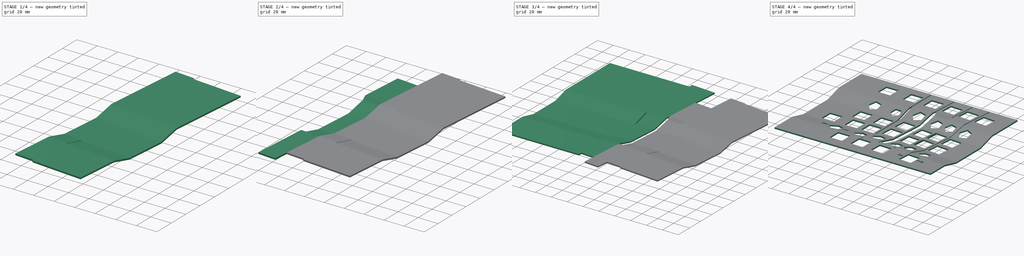
[diagram: build sequence overview — one tinted view per stage of 4, left to right]
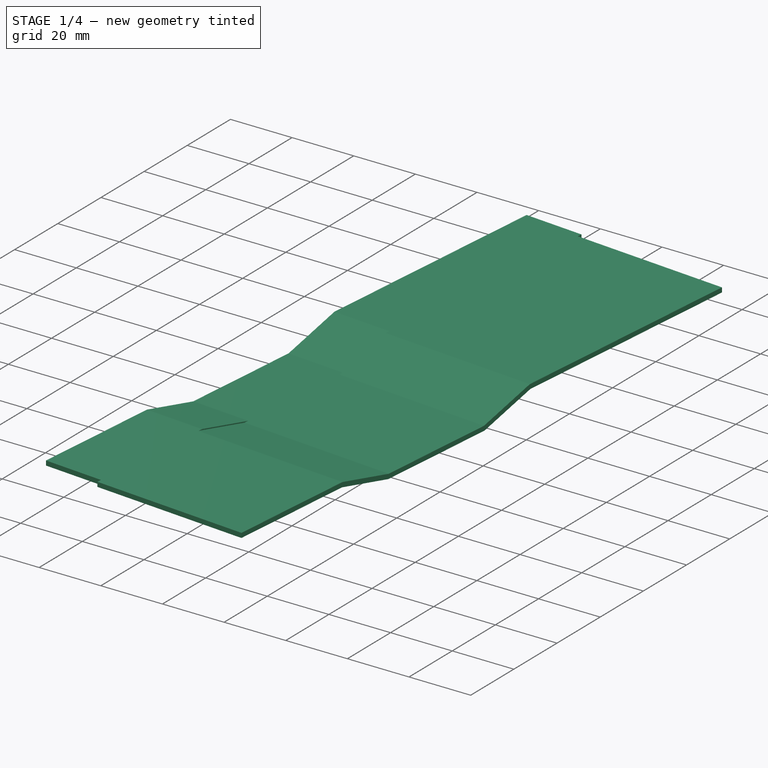
[diagram: stage 1 of 4 — iso view after this stage's code; geometry added in this stage tinted green]
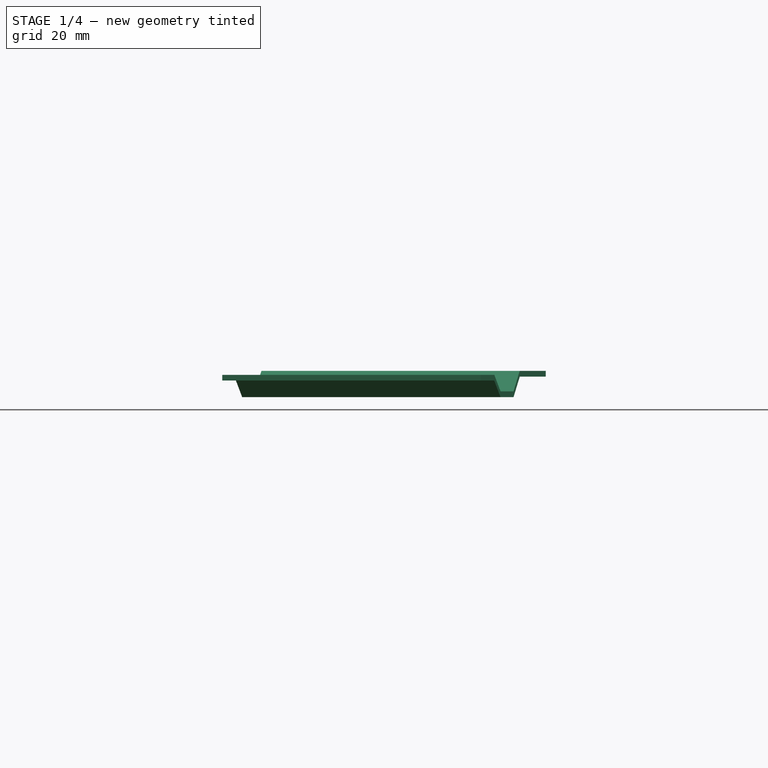
[diagram: stage 1 of 4 — front view after this stage's code; geometry added in this stage tinted green]
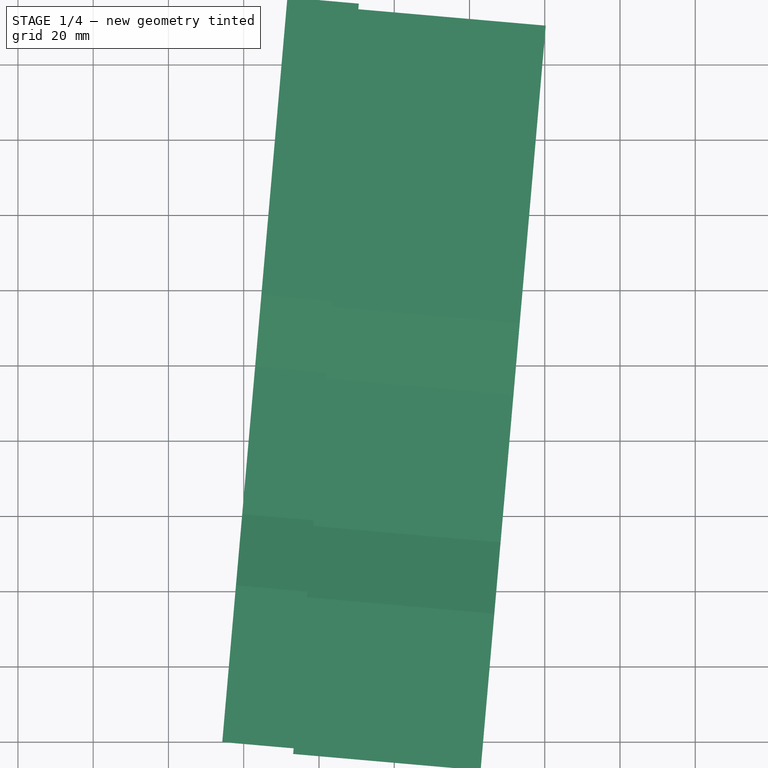
[diagram: stage 1 of 4 — top view after this stage's code; geometry added in this stage tinted green]
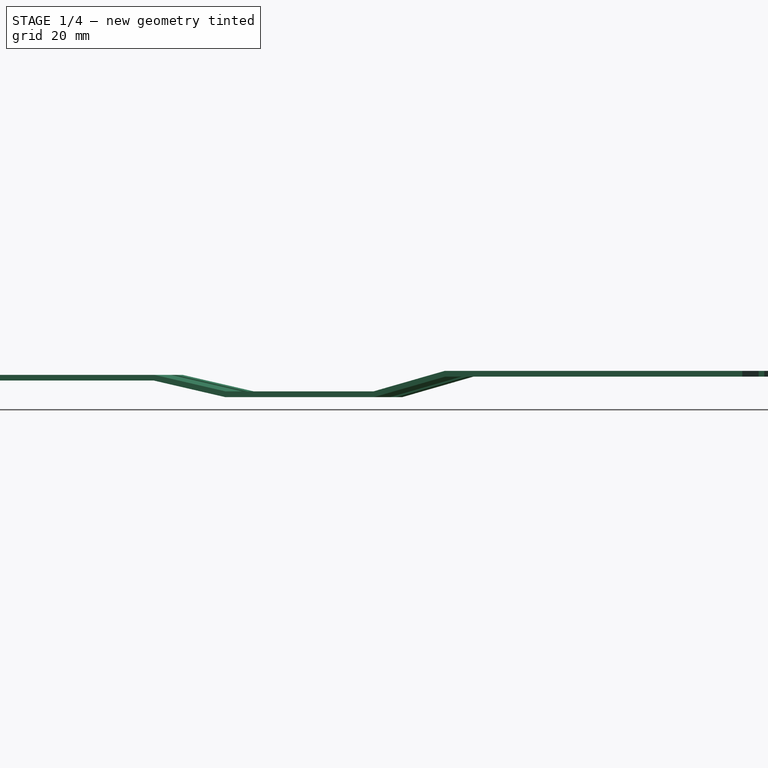
[diagram: stage 1 of 4 — right view after this stage's code; geometry added in this stage tinted green]
FCSTD DOCUMENT  (FreeCAD 0.20R29603 (Git))
Label: Rigel plate
License: All rights reserved
LicenseURL: http://en.wikipedia.org/wiki/All_rights_reserved
objects: Sketcher::SketchObject×9, TechDraw::DrawViewDimension×6, PartDesign::Pad×5, PartDesign::Pocket×4, Spreadsheet::Sheet×1, PartDesign::Body×1, Part::Part2DObjectPython×1, TechDraw::DrawSVGTemplate×1, TechDraw::DrawViewPart×1, TechDraw::DrawHatch×1, TechDraw::DrawPage×1
note: 29 computed .brp shape members not serialized (recipe doc carries the construction recipe); baked Part::Feature solids carry a one-line shape summary decoded from their .brp

FEATURE [Sketcher::SketchObject] Sketch  label="C4Sketch"
  FullyConstrained = false
  Placement = pos=(0,0,0) rot=(0.57735,0.57735,0.57735;2.0944rad)
  expr: Constraints[12] = Spreadsheet.OneU
  expr: Constraints[17] = Spreadsheet.R1Angle / 2
  expr: Constraints[19] = Spreadsheet.R1Angle / 2
  expr: Constraints[21] = Spreadsheet.KeyToPlate
  expr: Constraints[26] = Spreadsheet.OneU
  expr: Constraints[27] = Spreadsheet.OneU
  expr: Constraints[34] = Spreadsheet.R4Angle / 2
  expr: Constraints[35] = Spreadsheet.R4Angle / 2
  expr: Constraints[37] = Spreadsheet.KeyToPlate
  expr: Constraints[48] = Spreadsheet.PlateThickness
  expr: Constraints[49] = Spreadsheet.PlateThickness
  expr: Constraints[50] = Spreadsheet.PlateThickness
  expr: Constraints[51] = Spreadsheet.PlateThickness
  expr: Constraints[59] = Spreadsheet.PlateThickness
  expr: Constraints[8] = Spreadsheet.OneU
  expr: Constraints[9] = Spreadsheet.R1Angle
  sketch-geometry (22):
    g0: LineSegment StartX=0 StartY=0 StartZ=0 EndX=19.1168 EndY=-4.41347 EndZ=0
    g1: LineSegment StartX=19.1168 StartY=-4.41347 StartZ=0 EndX=58.4892 EndY=-4.41347 EndZ=0
    g2: LineSegment StartX=58.4892 StartY=-4.41347 StartZ=0 EndX=77.4767 EndY=1.03112 EndZ=0
    g3: LineSegment StartX=77.4767 StartY=1.03112 StartZ=0 EndX=156.891 EndY=1.03112 EndZ=0
    g4: LineSegment StartX=18.5617 StartY=-4.28532 StartZ=0 EndX=0 EndY=0 EndZ=0
    g5: LineSegment StartX=77.4767 StartY=1.03112 StartZ=0 EndX=59.1647 EndY=-4.21978 EndZ=0
    g6: LineSegment StartX=18.5617 StartY=-4.28532 StartZ=0 EndX=19.6865 EndY=0.586533 EndZ=0
    g7: LineSegment StartX=19.1168 StartY=-4.41347 StartZ=0 EndX=19.6865 EndY=0.586533 EndZ=0
    g8: LineSegment StartX=19.6865 StartY=0.586533 StartZ=0 EndX=19.6865 EndY=-4.41347 EndZ=0
    g9: LineSegment StartX=19.6865 StartY=-4.41347 StartZ=0 EndX=38.7365 EndY=-4.41347 EndZ=0
    g10: LineSegment StartX=38.7365 StartY=-4.41347 StartZ=0 EndX=57.7865 EndY=-4.41347 EndZ=0
    g11: LineSegment StartX=57.7865 StartY=-4.41347 StartZ=0 EndX=57.7865 EndY=0.586533 EndZ=0
    g12: LineSegment StartX=57.7865 StartY=0.586533 StartZ=0 EndX=58.4892 EndY=-4.41347 EndZ=0
    g13: LineSegment StartX=59.1647 StartY=-4.21978 StartZ=0 EndX=57.7865 EndY=0.586533 EndZ=0
    g14: LineSegment StartX=-0.170903 StartY=-1.5 StartZ=0 EndX=18.9459 EndY=-5.91347 EndZ=0
    g15: LineSegment StartX=18.9459 StartY=-5.91347 StartZ=0 EndX=58.7 EndY=-5.91347 EndZ=0
    g16: LineSegment StartX=58.7 StartY=-5.91347 StartZ=0 EndX=77.6875 EndY=-0.468884 EndZ=0
    g17: LineSegment StartX=77.6875 StartY=-0.468884 StartZ=0 EndX=156.891 EndY=-0.468884 EndZ=0
    g18: LineSegment StartX=156.891 StartY=-0.468884 StartZ=0 EndX=156.891 EndY=1.03112 EndZ=0
    g19: LineSegment StartX=0 StartY=0 StartZ=0 EndX=-41.7619 EndY=0 EndZ=0
    g20: LineSegment StartX=-41.7619 StartY=0 StartZ=0 EndX=-41.7619 EndY=-1.5 EndZ=0
    g21: LineSegment StartX=-41.7619 StartY=-1.5 StartZ=0 EndX=-0.170903 EndY=-1.5 EndZ=0
  constraints (60):
    c: Coincident(g1,g0)
    c: Horizontal(g1)
    c: Coincident(g2,g1)
    c: Coincident(g3,g2)
    c: Horizontal(g3)
    c: Coincident(g0,g-1)
    c: PointOnObject(g4,g0)
    c: Coincident(g4,g0)
    c: Distance(g4) = 19.05
    c: Angle(g0,g-1) = 0.226893
    c: Coincident(g5,g2)
    c: PointOnObject(g5,g2)
    c: Distance(g5) = 19.05
    c: Coincident(g6,g4)
    c: Coincident(g7,g0)
    c: Coincident(g7,g6)
    c: PointOnObject(g8,g1)
    c: Angle(g6,g7) = 0.113446
    c: Coincident(g8,g6)
    c: Angle(g7,g8) = 0.113446
    c: Perpendicular(g0,g6)
    c: Distance(g6) = 5
    c: Coincident(g9,g8)
    c: PointOnObject(g9,g1)
    c: Coincident(g10,g9)
    c: PointOnObject(g10,g1)
    c: Distance(g9) = 19.05
    c: Distance(g10) = 19.05
    c: Coincident(g11,g10)
    c: Coincident(g12,g11)
    c: Coincident(g12,g1)
    c: Coincident(g13,g5)
    c: Coincident(g13,g11)
    c: Perpendicular(g1,g11)
    c: Angle(g11,g12) = 0.139626
    c: Angle(g12,g13) = 0.139626
    c: Perpendicular(g2,g13)
    c: Distance(g11) = 5
    c: Coincident(g14,g15)
    c: Coincident(g15,g16)
    c: Coincident(g16,g17)
    c: Coincident(g17,g18)
    c: Coincident(g18,g3)
    c: Perpendicular(g3,g18)
    c: Perpendicular(g17,g18)
    c: Parallel(g2,g16)
    c: Parallel(g1,g15)
    c: Parallel(g0,g14)
    c: Distance(g18) = 1.5
    c: Distance(g2,g16) = 1.5
    c: Distance(g1,g15) = 1.5
    c: Distance(g0,g14) = 1.5
    c: Coincident(g19,g0)
    c: PointOnObject(g19,g-1)
    c: Coincident(g20,g19)
    c: Vertical(g20)
    c: Coincident(g21,g20)
    c: Coincident(g21,g14)
    c: Horizontal(g21)
    c: Distance(g20) = 1.5
FEATURE [Spreadsheet::Sheet] Spreadsheet
  cells = A1=1u; B1(OneU)==19.05 mm; C1=1u cutout; D1(OneUCutout)==14 mm; A2=Row 1 angle; B2(R1Angle)==13 deg; C2=Row 1 bend allowance; D2(R1BendAllowance)==tan(R1Angle / 2) * KeyToPlate * (1 + cos(R1Angle)); A3=Row 4 angle; B3(R4Angle)==16 deg; C3=Row 4 bend allowance; D3(R4BendAllowance)==tan(R4Angle / 2) * KeyToPlate * (1 + cos(R4Angle)); A4=Key to plate height; B4(KeyToPlate)==5 mm; A5=Plate thickness; B5(PlateThickness)==1.5 mm; A6=Cutout width; B6(CutoutWidth)==1 mm; A8=Col 4 angle (between col 4 and col 3); B8(C4Angle)==4 deg; C8=cum angle:; A9=Col 3 angle (between col 3 and col 2); B9(C3Angle)==1 deg; C9(C3Angle_Cum)==B9 + B8; A12=Col 3 stagger (step up to col 3 from col 4); B12(C3Stagger)==4.5 mm; A13=Col 2 stagger (step up to col 2 from col 3); B13(C2Stagger)==2.5 mm; C13=Col 2 V stagger; D13(C2VStagger)==3 mm; A14=Col 1 stagger (step down to col 1 from col 2); B14(C1Stagger)==2.5 mm; A15=Col 0 stagger (step down to col 0 from col 1); B15(C0Stagger)==1.5 mm; A17=Col 3 RHS; E17=Row 2 V offset; F17(R2VOffset)==OneU * cos(R1Angle) + R1BendAllowance; A18=x; B18(C3RHS_X)==cos(C4Angle) * OneU; E18=Row 4 V offset; F18(R4VOffset)==R2VOffset + 2 * OneU + R4BendAllowance; A19=y; B19(C3RHS_Y)==C3Stagger - sin(C4Angle) * OneU; E19=Row 5 V offset; F19(R5VOffset)==R4VOffset + OneU * cos(R4Angle); A21=Col 2 LHS; A22=x; B22(C2LHS_X)==C3RHS_X + sin(C4Angle) * C2Stagger; A23=y; B23(C2LHS_Y)==C3RHS_Y + cos(C4Angle) * C2Stagger; A25=Col 2 RHS; A26=x; B26(C2RHS_X)==C2LHS_X + cos(C3Angle_Cum) * OneU; A27=y; B27(C2RHS_Y)==C2LHS_Y - sin(C3Angle_Cum) * OneU; A29=Col 1 LHS; A30=x; B30(C1LHS_X)==C2RHS_X - sin(C3Angle_Cum) * C1Stagger; A31=y; B31(C1LHS_Y)==C2RHS_Y - cos(C3Angle_Cum) * C1Stagger; A33=Col 1 RHS; A34=x; B34(C1RHS_X)==C1LHS_X + cos(C3Angle_Cum) * OneU; A35=y; B35(C1RHS_Y)==C1LHS_Y - sin(C3Angle_Cum) * OneU; A37=Col 0 LHS; A38=x; B38(C0LHS_X)==C1RHS_X - sin(C3Angle_Cum) * C0Stagger; A39=y; B39(C0LHS_Y)==C1RHS_Y - cos(C3Angle_Cum) * C0Stagger
FEATURE [Sketcher::SketchObject] Sketch002  label="C3Sketch"
  FullyConstrained = false
  Placement = pos=(0,4.5,0) rot=(0.604214,0.563438,0.563438;2.05457rad)
  expr: .Placement.Base.y = Spreadsheet.C3Stagger
  expr: .Placement.Rotation.Yaw = 90 deg - Spreadsheet.C4Angle
  expr: Constraints[12] = Spreadsheet.OneU
  expr: Constraints[17] = Spreadsheet.R1Angle / 2
  expr: Constraints[19] = Spreadsheet.R1Angle / 2
  expr: Constraints[21] = Spreadsheet.KeyToPlate
  expr: Constraints[26] = Spreadsheet.OneU
  expr: Constraints[27] = Spreadsheet.OneU
  expr: Constraints[34] = Spreadsheet.R4Angle / 2
  expr: Constraints[35] = Spreadsheet.R4Angle / 2
  expr: Constraints[37] = Spreadsheet.KeyToPlate
  expr: Constraints[48] = Spreadsheet.PlateThickness
  expr: Constraints[49] = Spreadsheet.PlateThickness
  expr: Constraints[50] = Spreadsheet.PlateThickness
  expr: Constraints[51] = Spreadsheet.PlateThickness
  expr: Constraints[59] = Spreadsheet.PlateThickness
  expr: Constraints[8] = Spreadsheet.OneU
  expr: Constraints[9] = Spreadsheet.R1Angle
  sketch-geometry (22):
    g0: LineSegment StartX=0 StartY=0 StartZ=0 EndX=19.1168 EndY=-4.41347 EndZ=0
    g1: LineSegment StartX=19.1168 StartY=-4.41347 StartZ=0 EndX=58.4892 EndY=-4.41347 EndZ=0
    g2: LineSegment StartX=58.4892 StartY=-4.41347 StartZ=0 EndX=77.4767 EndY=1.03112 EndZ=0
    g3: LineSegment StartX=77.4767 StartY=1.03112 StartZ=0 EndX=156.891 EndY=1.03112 EndZ=0
    g4: LineSegment StartX=18.5617 StartY=-4.28532 StartZ=0 EndX=0 EndY=0 EndZ=0
    g5: LineSegment StartX=77.4767 StartY=1.03112 StartZ=0 EndX=59.1647 EndY=-4.21978 EndZ=0
    g6: LineSegment StartX=18.5617 StartY=-4.28532 StartZ=0 EndX=19.6865 EndY=0.586533 EndZ=0
    g7: LineSegment StartX=19.1168 StartY=-4.41347 StartZ=0 EndX=19.6865 EndY=0.586533 EndZ=0
    g8: LineSegment StartX=19.6865 StartY=0.586533 StartZ=0 EndX=19.6865 EndY=-4.41347 EndZ=0
    g9: LineSegment StartX=19.6865 StartY=-4.41347 StartZ=0 EndX=38.7365 EndY=-4.41347 EndZ=0
    g10: LineSegment StartX=38.7365 StartY=-4.41347 StartZ=0 EndX=57.7865 EndY=-4.41347 EndZ=0
    g11: LineSegment StartX=57.7865 StartY=-4.41347 StartZ=0 EndX=57.7865 EndY=0.586533 EndZ=0
    g12: LineSegment StartX=57.7865 StartY=0.586533 StartZ=0 EndX=58.4892 EndY=-4.41347 EndZ=0
    g13: LineSegment StartX=59.1647 StartY=-4.21978 StartZ=0 EndX=57.7865 EndY=0.586533 EndZ=0
    g14: LineSegment StartX=-0.170903 StartY=-1.5 StartZ=0 EndX=18.9459 EndY=-5.91347 EndZ=0
    g15: LineSegment StartX=18.9459 StartY=-5.91347 StartZ=0 EndX=58.7 EndY=-5.91347 EndZ=0
    g16: LineSegment StartX=58.7 StartY=-5.91347 StartZ=0 EndX=77.6875 EndY=-0.468884 EndZ=0
    g17: LineSegment StartX=77.6875 StartY=-0.468884 StartZ=0 EndX=156.891 EndY=-0.468884 EndZ=0
    g18: LineSegment StartX=156.891 StartY=-0.468884 StartZ=0 EndX=156.891 EndY=1.03112 EndZ=0
    g19: LineSegment StartX=0 StartY=0 StartZ=0 EndX=-41.7619 EndY=0 EndZ=0
    g20: LineSegment StartX=-41.7619 StartY=0 StartZ=0 EndX=-41.7619 EndY=-1.5 EndZ=0
    g21: LineSegment StartX=-41.7619 StartY=-1.5 StartZ=0 EndX=-0.170903 EndY=-1.5 EndZ=0
  constraints (60):
    c: Coincident(g1,g0)
    c: Horizontal(g1)
    c: Coincident(g2,g1)
    c: Coincident(g3,g2)
    c: Horizontal(g3)
    c: Coincident(g0,g-1)
    c: PointOnObject(g4,g0)
    c: Coincident(g4,g0)
    c: Distance(g4) = 19.05
    c: Angle(g0,g-1) = 0.226893
    c: Coincident(g5,g2)
    c: PointOnObject(g5,g2)
    c: Distance(g5) = 19.05
    c: Coincident(g6,g4)
    c: Coincident(g7,g0)
    c: Coincident(g7,g6)
    c: PointOnObject(g8,g1)
    c: Angle(g6,g7) = 0.113446
    c: Coincident(g8,g6)
    c: Angle(g7,g8) = 0.113446
    c: Perpendicular(g0,g6)
    c: Distance(g6) = 5
    c: Coincident(g9,g8)
    c: PointOnObject(g9,g1)
    c: Coincident(g10,g9)
    c: PointOnObject(g10,g1)
    c: Distance(g9) = 19.05
    c: Distance(g10) = 19.05
    c: Coincident(g11,g10)
    c: Coincident(g12,g11)
    c: Coincident(g12,g1)
    c: Coincident(g13,g5)
    c: Coincident(g13,g11)
    c: Perpendicular(g1,g11)
    c: Angle(g11,g12) = 0.139626
    c: Angle(g12,g13) = 0.139626
    c: Perpendicular(g2,g13)
    c: Distance(g11) = 5
    c: Coincident(g14,g15)
    c: Coincident(g15,g16)
    c: Coincident(g16,g17)
    c: Coincident(g17,g18)
    c: Coincident(g18,g3)
    c: Perpendicular(g3,g18)
    c: Perpendicular(g17,g18)
    c: Parallel(g2,g16)
    c: Parallel(g1,g15)
    c: Parallel(g0,g14)
    c: Distance(g18) = 1.5
    c: Distance(g2,g16) = 1.5
    c: Distance(g1,g15) = 1.5
    c: Distance(g0,g14) = 1.5
    c: Coincident(g19,g0)
    c: PointOnObject(g19,g-1)
    c: Coincident(g20,g19)
    c: Vertical(g20)
    c: Coincident(g21,g20)
    c: Coincident(g21,g14)
    c: Horizontal(g21)
    c: Distance(g20) = 1.5
FEATURE [Sketcher::SketchObject] Sketch003  label="C3PocketSketch"
  FullyConstrained = false
  sketch-geometry (4):
    g0: LineSegment StartX=-113.387 StartY=170.461 StartZ=0 EndX=0 EndY=170.461 EndZ=0
    g1: LineSegment StartX=0 StartY=170.461 StartZ=0 EndX=0 EndY=-59.0202 EndZ=0
    g2: LineSegment StartX=0 StartY=-59.0202 StartZ=0 EndX=-113.387 EndY=-59.0202 EndZ=0
    g3: LineSegment StartX=-113.387 StartY=-59.0202 StartZ=0 EndX=-113.387 EndY=170.461 EndZ=0
  constraints (9):
    c: Coincident(g0,g1)
    c: Coincident(g1,g2)
    c: Coincident(g2,g3)
    c: Coincident(g3,g0)
    c: Horizontal(g0)
    c: Horizontal(g2)
    c: Vertical(g1)
    c: Vertical(g3)
    c: PointOnObject(g1,g-2)
FEATURE [Sketcher::SketchObject] Sketch004  label="C2Sketch"
  FullyConstrained = false
  Placement = pos=(19.178,5.66505,0) rot=(0.610924,0.559809,0.559809;2.04477rad)
  expr: .Placement.Base.x = Spreadsheet.C2LHS_X
  expr: .Placement.Base.y = Spreadsheet.C2LHS_Y
  expr: .Placement.Rotation.Yaw = 90 deg - Spreadsheet.C4Angle - Spreadsheet.C3Angle
  expr: Constraints[14] = Spreadsheet.R1Angle / 2
  expr: Constraints[16] = Spreadsheet.R1Angle / 2
  expr: Constraints[18] = Spreadsheet.KeyToPlate
  expr: Constraints[23] = Spreadsheet.OneU
  expr: Constraints[24] = Spreadsheet.OneU
  expr: Constraints[31] = Spreadsheet.R4Angle / 2
  expr: Constraints[32] = Spreadsheet.R4Angle / 2
  expr: Constraints[34] = Spreadsheet.KeyToPlate
  expr: Constraints[40] = Spreadsheet.PlateThickness
  expr: Constraints[41] = Spreadsheet.PlateThickness
  expr: Constraints[42] = Spreadsheet.PlateThickness
  expr: Constraints[44] = -Spreadsheet.C2VStagger
  expr: Constraints[56] = Spreadsheet.PlateThickness
  expr: Constraints[58] = Spreadsheet.PlateThickness
  expr: Constraints[5] = Spreadsheet.OneU
  expr: Constraints[69] = Spreadsheet.PlateThickness
  expr: Constraints[6] = Spreadsheet.R1Angle
  expr: Constraints[70] = Spreadsheet.C2VStagger
  expr: Constraints[71] = Spreadsheet.PlateThickness
  expr: Constraints[9] = Spreadsheet.OneU
  sketch-geometry (26):
    g0: LineSegment StartX=0 StartY=-3 StartZ=0 EndX=19.1168 EndY=-7.41347 EndZ=0
    g1: LineSegment StartX=19.1168 StartY=-7.41347 StartZ=0 EndX=58.4892 EndY=-7.41347 EndZ=0
    g2: LineSegment StartX=58.4892 StartY=-7.41347 StartZ=0 EndX=77.4767 EndY=-1.96888 EndZ=0
    g3: LineSegment StartX=18.5617 StartY=-7.28532 StartZ=0 EndX=0 EndY=-3 EndZ=0
    g4: LineSegment StartX=77.4767 StartY=-1.96888 StartZ=0 EndX=59.1647 EndY=-7.21978 EndZ=0
    g5: LineSegment StartX=18.5617 StartY=-7.28532 StartZ=0 EndX=19.6865 EndY=-2.41347 EndZ=0
    g6: LineSegment StartX=19.1168 StartY=-7.41347 StartZ=0 EndX=19.6865 EndY=-2.41347 EndZ=0
    g7: LineSegment StartX=19.6865 StartY=-2.41347 StartZ=0 EndX=19.6865 EndY=-7.41347 EndZ=0
    g8: LineSegment StartX=19.6865 StartY=-7.41347 StartZ=0 EndX=38.7365 EndY=-7.41347 EndZ=0
    g9: LineSegment StartX=38.7365 StartY=-7.41347 StartZ=0 EndX=57.7865 EndY=-7.41347 EndZ=0
    g10: LineSegment StartX=57.7865 StartY=-7.41347 StartZ=0 EndX=57.7865 EndY=-2.41347 EndZ=0
    g11: LineSegment StartX=57.7865 StartY=-2.41347 StartZ=0 EndX=58.4892 EndY=-7.41347 EndZ=0
    g12: LineSegment StartX=59.1647 StartY=-7.21978 StartZ=0 EndX=57.7865 EndY=-2.41347 EndZ=0
    g13: LineSegment StartX=-0.756521 StartY=-4.3648 StartZ=0 EndX=18.9459 EndY=-8.91347 EndZ=0
    g14: LineSegment StartX=18.9459 StartY=-8.91347 StartZ=0 EndX=58.7 EndY=-8.91347 EndZ=0
    g15: LineSegment StartX=58.7 StartY=-8.91347 StartZ=0 EndX=78.2631 EndY=-3.30385 EndZ=0
    g16: LineSegment StartX=0 StartY=-3 StartZ=0 EndX=-3 EndY=0 EndZ=0
    g17: LineSegment StartX=-3 StartY=0 StartZ=0 EndX=-58.8129 EndY=0 EndZ=0
    g18: LineSegment StartX=-58.8129 StartY=0 StartZ=0 EndX=-58.8129 EndY=-1.5 EndZ=0
    g19: LineSegment StartX=-58.8129 StartY=-1.5 StartZ=0 EndX=-3.62132 EndY=-1.5 EndZ=0
    g20: LineSegment StartX=-3.62132 StartY=-1.5 StartZ=0 EndX=-0.756521 EndY=-4.3648 EndZ=0
    g21: LineSegment StartX=77.4767 StartY=-1.96888 StartZ=0 EndX=80.4767 EndY=1.03112 EndZ=0
    g22: LineSegment StartX=80.4767 StartY=1.03112 StartZ=0 EndX=122.825 EndY=1.03112 EndZ=0
    g23: LineSegment StartX=122.825 StartY=1.03112 StartZ=0 EndX=122.825 EndY=-0.468884 EndZ=0
    g24: LineSegment StartX=122.825 StartY=-0.468884 StartZ=0 EndX=81.098 EndY=-0.468884 EndZ=0
    g25: LineSegment StartX=81.098 StartY=-0.468884 StartZ=0 EndX=78.2631 EndY=-3.30385 EndZ=0
  constraints (73):
    c: Coincident(g1,g0)
    c: Horizontal(g1)
    c: Coincident(g2,g1)
    c: PointOnObject(g3,g0)
    c: Coincident(g3,g0)
    c: Distance(g3) = 19.05
    c: Angle(g0,g-1) = 0.226893
    c: Coincident(g4,g2)
    c: PointOnObject(g4,g2)
    c: Distance(g4) = 19.05
    c: Coincident(g5,g3)
    c: Coincident(g6,g0)
    c: Coincident(g6,g5)
    c: PointOnObject(g7,g1)
    c: Angle(g5,g6) = 0.113446
    c: Coincident(g7,g5)
    c: Angle(g6,g7) = 0.113446
    c: Perpendicular(g0,g5)
    c: Distance(g5) = 5
    c: Coincident(g8,g7)
    c: PointOnObject(g8,g1)
    c: Coincident(g9,g8)
    c: PointOnObject(g9,g1)
    c: Distance(g8) = 19.05
    c: Distance(g9) = 19.05
    c: Coincident(g10,g9)
    c: Coincident(g11,g10)
    c: Coincident(g11,g1)
    c: Coincident(g12,g4)
    c: Coincident(g12,g10)
    c: Perpendicular(g1,g10)
    c: Angle(g10,g11) = 0.139626
    c: Angle(g11,g12) = 0.139626
    c: Perpendicular(g2,g12)
    c: Distance(g10) = 5
    c: Coincident(g13,g14)
    c: Coincident(g14,g15)
    c: Parallel(g2,g15)
    c: Parallel(g1,g14)
    c: Parallel(g0,g13)
    c: Distance(g2,g15) = 1.5
    c: Distance(g1,g14) = 1.5
    c: Distance(g0,g13) = 1.5
    c: PointOnObject(g0,g-2)
    c: DistanceY(g-1,g0) = -3
    c: Coincident(g0,g16)
    c: PointOnObject(g16,g-1)
    c: Coincident(g16,g17)
    c: PointOnObject(g17,g-1)
    c: Coincident(g17,g18)
    c: Vertical(g18)
    c: Coincident(g18,g19)
    c: Horizontal(g19)
    c: Coincident(g19,g20)
    c: Coincident(g20,g13)
    c: Parallel(g16,g20)
    c: Distance(g18) = 1.5
    c: Angle(g16,g-1) = 0.785398
    c: Distance(g0,g20) = 1.5
    c: Coincident(g2,g21)
    c: Coincident(g21,g22)
    c: Horizontal(g22)
    c: Coincident(g22,g23)
    c: Vertical(g23)
    c: Coincident(g23,g24)
    c: Horizontal(g24)
    c: Coincident(g24,g25)
    c: Coincident(g25,g15)
    c: Parallel(g25,g21)
    c: Distance(g23) = 1.5
    c: DistanceY(g2,g21) = 3
    c: Distance(g2,g25) = 1.5
    c: Angle(g-1,g21) = 0.785398
FEATURE [Sketcher::SketchObject] Sketch005  label="C2PocketSketch"
  FullyConstrained = false
  Placement = pos=(19.178,5.66505,0) rot=(0,0,-1;0.069813rad)
  expr: .Placement.Base.x = Spreadsheet.C2LHS_X
  expr: .Placement.Base.y = Spreadsheet.C2LHS_Y
  expr: .Placement.Rotation.Yaw = -Spreadsheet.C4Angle
  sketch-geometry (4):
    g0: LineSegment StartX=0 StartY=-73.9465 StartZ=0 EndX=-34.842 EndY=-73.9465 EndZ=0
    g1: LineSegment StartX=-34.842 StartY=-73.9465 StartZ=0 EndX=-34.842 EndY=181.655 EndZ=0
    g2: LineSegment StartX=-34.842 StartY=181.655 StartZ=0 EndX=0 EndY=181.655 EndZ=0
    g3: LineSegment StartX=0 StartY=181.655 StartZ=0 EndX=0 EndY=-73.9465 EndZ=0
  constraints (9):
    c: Coincident(g0,g1)
    c: Coincident(g1,g2)
    c: Coincident(g2,g3)
    c: Coincident(g3,g0)
    c: Horizontal(g0)
    c: Horizontal(g2)
    c: Vertical(g1)
    c: Vertical(g3)
    c: PointOnObject(g0,g-2)
FEATURE [Sketcher::SketchObject] Sketch006  label="C1Sketch"
  FullyConstrained = false
  Placement = pos=(37.9376,1.51425,0) rot=(0.610924,0.559809,0.559809;2.04477rad)
  expr: .Placement.Base.x = Spreadsheet.C1LHS_X
  expr: .Placement.Base.y = Spreadsheet.C1LHS_Y
  expr: .Placement.Rotation.Yaw = 90 deg - Spreadsheet.C3Angle_Cum
  expr: Constraints[12] = Spreadsheet.OneU
  expr: Constraints[17] = Spreadsheet.R1Angle / 2
  expr: Constraints[19] = Spreadsheet.R1Angle / 2
  expr: Constraints[21] = Spreadsheet.KeyToPlate
  expr: Constraints[26] = Spreadsheet.OneU
  expr: Constraints[27] = Spreadsheet.OneU
  expr: Constraints[34] = Spreadsheet.R4Angle / 2
  expr: Constraints[35] = Spreadsheet.R4Angle / 2
  expr: Constraints[37] = Spreadsheet.KeyToPlate
  expr: Constraints[48] = Spreadsheet.PlateThickness
  expr: Constraints[49] = Spreadsheet.PlateThickness
  expr: Constraints[50] = Spreadsheet.PlateThickness
  expr: Constraints[51] = Spreadsheet.PlateThickness
  expr: Constraints[59] = Spreadsheet.PlateThickness
  expr: Constraints[8] = Spreadsheet.OneU
  expr: Constraints[9] = Spreadsheet.R1Angle
  sketch-geometry (22):
    g0: LineSegment StartX=0 StartY=0 StartZ=0 EndX=19.1168 EndY=-4.41347 EndZ=0
    g1: LineSegment StartX=19.1168 StartY=-4.41347 StartZ=0 EndX=58.4892 EndY=-4.41347 EndZ=0
    g2: LineSegment StartX=58.4892 StartY=-4.41347 StartZ=0 EndX=77.4767 EndY=1.03112 EndZ=0
    g3: LineSegment StartX=77.4767 StartY=1.03112 StartZ=0 EndX=156.891 EndY=1.03112 EndZ=0
    g4: LineSegment StartX=18.5617 StartY=-4.28532 StartZ=0 EndX=0 EndY=0 EndZ=0
    g5: LineSegment StartX=77.4767 StartY=1.03112 StartZ=0 EndX=59.1647 EndY=-4.21978 EndZ=0
    g6: LineSegment StartX=18.5617 StartY=-4.28532 StartZ=0 EndX=19.6865 EndY=0.586533 EndZ=0
    g7: LineSegment StartX=19.1168 StartY=-4.41347 StartZ=0 EndX=19.6865 EndY=0.586533 EndZ=0
    g8: LineSegment StartX=19.6865 StartY=0.586533 StartZ=0 EndX=19.6865 EndY=-4.41347 EndZ=0
    g9: LineSegment StartX=19.6865 StartY=-4.41347 StartZ=0 EndX=38.7365 EndY=-4.41347 EndZ=0
    g10: LineSegment StartX=38.7365 StartY=-4.41347 StartZ=0 EndX=57.7865 EndY=-4.41347 EndZ=0
    g11: LineSegment StartX=57.7865 StartY=-4.41347 StartZ=0 EndX=57.7865 EndY=0.586533 EndZ=0
    g12: LineSegment StartX=57.7865 StartY=0.586533 StartZ=0 EndX=58.4892 EndY=-4.41347 EndZ=0
    g13: LineSegment StartX=59.1647 StartY=-4.21978 StartZ=0 EndX=57.7865 EndY=0.586533 EndZ=0
    g14: LineSegment StartX=-0.170903 StartY=-1.5 StartZ=0 EndX=18.9459 EndY=-5.91347 EndZ=0
    g15: LineSegment StartX=18.9459 StartY=-5.91347 StartZ=0 EndX=58.7 EndY=-5.91347 EndZ=0
    g16: LineSegment StartX=58.7 StartY=-5.91347 StartZ=0 EndX=77.6875 EndY=-0.468884 EndZ=0
    g17: LineSegment StartX=77.6875 StartY=-0.468884 StartZ=0 EndX=156.891 EndY=-0.468884 EndZ=0
    g18: LineSegment StartX=156.891 StartY=-0.468884 StartZ=0 EndX=156.891 EndY=1.03112 EndZ=0
    g19: LineSegment StartX=0 StartY=0 StartZ=0 EndX=-41.7619 EndY=0 EndZ=0
    g20: LineSegment StartX=-41.7619 StartY=0 StartZ=0 EndX=-41.7619 EndY=-1.5 EndZ=0
    g21: LineSegment StartX=-41.7619 StartY=-1.5 StartZ=0 EndX=-0.170903 EndY=-1.5 EndZ=0
  constraints (60):
    c: Coincident(g1,g0)
    c: Horizontal(g1)
    c: Coincident(g2,g1)
    c: Coincident(g3,g2)
    c: Horizontal(g3)
    c: Coincident(g0,g-1)
    c: PointOnObject(g4,g0)
    c: Coincident(g4,g0)
    c: Distance(g4) = 19.05
    c: Angle(g0,g-1) = 0.226893
    c: Coincident(g5,g2)
    c: PointOnObject(g5,g2)
    c: Distance(g5) = 19.05
    c: Coincident(g6,g4)
    c: Coincident(g7,g0)
    c: Coincident(g7,g6)
    c: PointOnObject(g8,g1)
    c: Angle(g6,g7) = 0.113446
    c: Coincident(g8,g6)
    c: Angle(g7,g8) = 0.113446
    c: Perpendicular(g0,g6)
    c: Distance(g6) = 5
    c: Coincident(g9,g8)
    c: PointOnObject(g9,g1)
    c: Coincident(g10,g9)
    c: PointOnObject(g10,g1)
    c: Distance(g9) = 19.05
    c: Distance(g10) = 19.05
    c: Coincident(g11,g10)
    c: Coincident(g12,g11)
    c: Coincident(g12,g1)
    c: Coincident(g13,g5)
    c: Coincident(g13,g11)
    c: Perpendicular(g1,g11)
    c: Angle(g11,g12) = 0.139626
    c: Angle(g12,g13) = 0.139626
    c: Perpendicular(g2,g13)
    c: Distance(g11) = 5
    c: Coincident(g14,g15)
    c: Coincident(g15,g16)
    c: Coincident(g16,g17)
    c: Coincident(g17,g18)
    c: Coincident(g18,g3)
    c: Perpendicular(g3,g18)
    c: Perpendicular(g17,g18)
    c: Parallel(g2,g16)
    c: Parallel(g1,g15)
    c: Parallel(g0,g14)
    c: Distance(g18) = 1.5
    c: Distance(g2,g16) = 1.5
    c: Distance(g1,g15) = 1.5
    c: Distance(g0,g14) = 1.5
    c: Coincident(g19,g0)
    c: PointOnObject(g19,g-1)
    c: Coincident(g20,g19)
    c: Vertical(g20)
    c: Coincident(g21,g20)
    c: Coincident(g21,g14)
    c: Horizontal(g21)
    c: Distance(g20) = 1.5
FEATURE [Sketcher::SketchObject] Sketch007  label="C0Sketch"
  FullyConstrained = false
  Placement = pos=(56.7844,-1.64036,0) rot=(0.610924,0.559809,0.559809;2.04477rad)
  expr: .Placement.Base.x = Spreadsheet.C0LHS_X
  expr: .Placement.Base.y = Spreadsheet.C0LHS_Y
  expr: .Placement.Rotation.Yaw = 90 deg - Spreadsheet.C3Angle_Cum
  expr: Constraints[12] = Spreadsheet.OneU
  expr: Constraints[17] = Spreadsheet.R1Angle / 2
  expr: Constraints[19] = Spreadsheet.R1Angle / 2
  expr: Constraints[21] = Spreadsheet.KeyToPlate
  expr: Constraints[26] = Spreadsheet.OneU
  expr: Constraints[27] = Spreadsheet.OneU
  expr: Constraints[34] = Spreadsheet.R4Angle / 2
  expr: Constraints[35] = Spreadsheet.R4Angle / 2
  expr: Constraints[37] = Spreadsheet.KeyToPlate
  expr: Constraints[48] = Spreadsheet.PlateThickness
  expr: Constraints[49] = Spreadsheet.PlateThickness
  expr: Constraints[50] = Spreadsheet.PlateThickness
  expr: Constraints[51] = Spreadsheet.PlateThickness
  expr: Constraints[59] = Spreadsheet.PlateThickness
  expr: Constraints[8] = Spreadsheet.OneU
  expr: Constraints[9] = Spreadsheet.R1Angle
  sketch-geometry (22):
    g0: LineSegment StartX=0 StartY=0 StartZ=0 EndX=19.1168 EndY=-4.41347 EndZ=0
    g1: LineSegment StartX=19.1168 StartY=-4.41347 StartZ=0 EndX=58.4892 EndY=-4.41347 EndZ=0
    g2: LineSegment StartX=58.4892 StartY=-4.41347 StartZ=0 EndX=77.4767 EndY=1.03112 EndZ=0
    g3: LineSegment StartX=77.4767 StartY=1.03112 StartZ=0 EndX=156.891 EndY=1.03112 EndZ=0
    g4: LineSegment StartX=18.5617 StartY=-4.28532 StartZ=0 EndX=0 EndY=0 EndZ=0
    g5: LineSegment StartX=77.4767 StartY=1.03112 StartZ=0 EndX=59.1647 EndY=-4.21978 EndZ=0
    g6: LineSegment StartX=18.5617 StartY=-4.28532 StartZ=0 EndX=19.6865 EndY=0.586533 EndZ=0
    g7: LineSegment StartX=19.1168 StartY=-4.41347 StartZ=0 EndX=19.6865 EndY=0.586533 EndZ=0
    g8: LineSegment StartX=19.6865 StartY=0.586533 StartZ=0 EndX=19.6865 EndY=-4.41347 EndZ=0
    g9: LineSegment StartX=19.6865 StartY=-4.41347 StartZ=0 EndX=38.7365 EndY=-4.41347 EndZ=0
    g10: LineSegment StartX=38.7365 StartY=-4.41347 StartZ=0 EndX=57.7865 EndY=-4.41347 EndZ=0
    g11: LineSegment StartX=57.7865 StartY=-4.41347 StartZ=0 EndX=57.7865 EndY=0.586533 EndZ=0
    g12: LineSegment StartX=57.7865 StartY=0.586533 StartZ=0 EndX=58.4892 EndY=-4.41347 EndZ=0
    g13: LineSegment StartX=59.1647 StartY=-4.21978 StartZ=0 EndX=57.7865 EndY=0.586533 EndZ=0
    g14: LineSegment StartX=-0.170903 StartY=-1.5 StartZ=0 EndX=18.9459 EndY=-5.91347 EndZ=0
    g15: LineSegment StartX=18.9459 StartY=-5.91347 StartZ=0 EndX=58.7 EndY=-5.91347 EndZ=0
    g16: LineSegment StartX=58.7 StartY=-5.91347 StartZ=0 EndX=77.6875 EndY=-0.468884 EndZ=0
    g17: LineSegment StartX=77.6875 StartY=-0.468884 StartZ=0 EndX=156.891 EndY=-0.468884 EndZ=0
    g18: LineSegment StartX=156.891 StartY=-0.468884 StartZ=0 EndX=156.891 EndY=1.03112 EndZ=0
    g19: LineSegment StartX=0 StartY=0 StartZ=0 EndX=-41.7619 EndY=0 EndZ=0
    g20: LineSegment StartX=-41.7619 StartY=0 StartZ=0 EndX=-41.7619 EndY=-1.5 EndZ=0
    g21: LineSegment StartX=-41.7619 StartY=-1.5 StartZ=0 EndX=-0.170903 EndY=-1.5 EndZ=0
  constraints (60):
    c: Coincident(g1,g0)
    c: Horizontal(g1)
    c: Coincident(g2,g1)
    c: Coincident(g3,g2)
    c: Horizontal(g3)
    c: Coincident(g0,g-1)
    c: PointOnObject(g4,g0)
    c: Coincident(g4,g0)
    c: Distance(g4) = 19.05
    c: Angle(g0,g-1) = 0.226893
    c: Coincident(g5,g2)
    c: PointOnObject(g5,g2)
    c: Distance(g5) = 19.05
    c: Coincident(g6,g4)
    c: Coincident(g7,g0)
    c: Coincident(g7,g6)
    c: PointOnObject(g8,g1)
    c: Angle(g6,g7) = 0.113446
    c: Coincident(g8,g6)
    c: Angle(g7,g8) = 0.113446
    c: Perpendicular(g0,g6)
    c: Distance(g6) = 5
    c: Coincident(g9,g8)
    c: PointOnObject(g9,g1)
    c: Coincident(g10,g9)
    c: PointOnObject(g10,g1)
    c: Distance(g9) = 19.05
    c: Distance(g10) = 19.05
    c: Coincident(g11,g10)
    c: Coincident(g12,g11)
    c: Coincident(g12,g1)
    c: Coincident(g13,g5)
    c: Coincident(g13,g11)
    c: Perpendicular(g1,g11)
    c: Angle(g11,g12) = 0.139626
    c: Angle(g12,g13) = 0.139626
    c: Perpendicular(g2,g13)
    c: Distance(g11) = 5
    c: Coincident(g14,g15)
    c: Coincident(g15,g16)
    c: Coincident(g16,g17)
    c: Coincident(g17,g18)
    c: Coincident(g18,g3)
    c: Perpendicular(g3,g18)
    c: Perpendicular(g17,g18)
    c: Parallel(g2,g16)
    c: Parallel(g1,g15)
    c: Parallel(g0,g14)
    c: Distance(g18) = 1.5
    c: Distance(g2,g16) = 1.5
    c: Distance(g1,g15) = 1.5
    c: Distance(g0,g14) = 1.5
    c: Coincident(g19,g0)
    c: PointOnObject(g19,g-1)
    c: Coincident(g20,g19)
    c: Vertical(g20)
    c: Coincident(g21,g20)
    c: Coincident(g21,g14)
    c: Horizontal(g21)
    c: Distance(g20) = 1.5
FEATURE [PartDesign::Pad] Pad004  label="C0Pad"
  Direction = (0.996195,-0.0871557,-4e-16)
  Length = 50
  Length2 = 10
  Placement = pos=(56.7844,-1.64036,0) rot=(0.610924,0.559809,0.559809;2.04477rad)
  Profile = -> Sketch007
  ReferenceAxis = -> Sketch007 [N_Axis]
  Type = 0
FEATURE [PartDesign::Pad] Pad003  label="C1Pad"
  BaseFeature = -> Pad004
  Direction = (0.996195,-0.0871557,-1e-16)
  Length = 19.05
  Length2 = 10
  Placement = pos=(56.7844,-1.64036,0) rot=(0.610924,0.559809,0.559809;2.04477rad)
  Profile = -> Sketch006
  ReferenceAxis = -> Sketch006 [N_Axis]
  Type = 0
  expr: Length = Spreadsheet.OneU
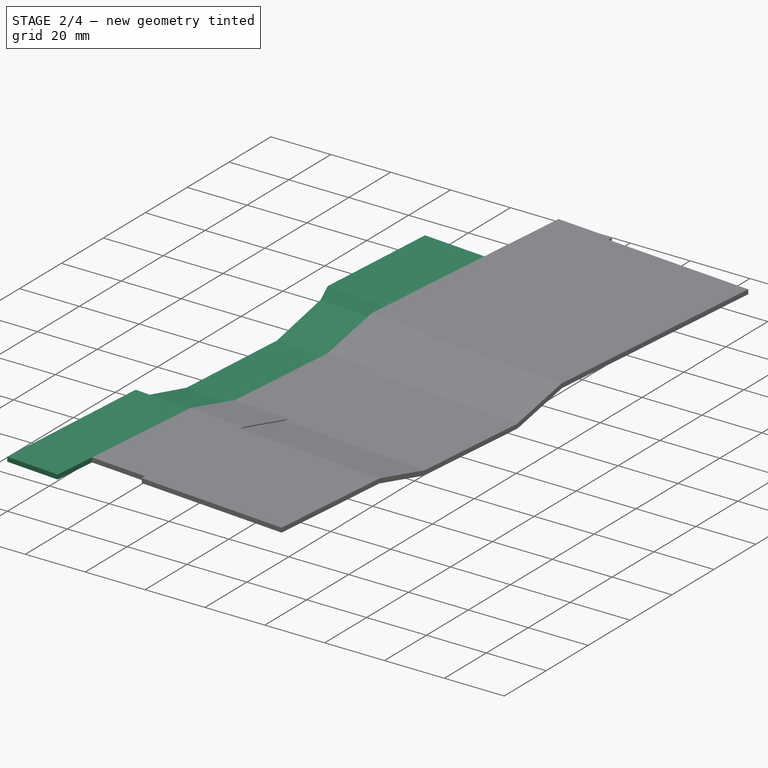
[diagram: stage 2 of 4 — iso view after this stage's code; geometry added in this stage tinted green]
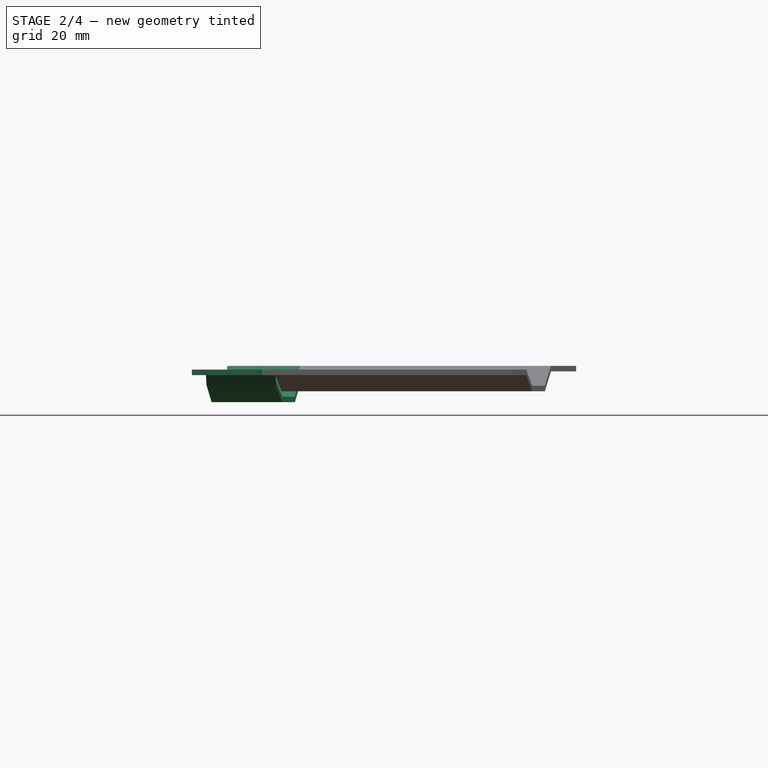
[diagram: stage 2 of 4 — front view after this stage's code; geometry added in this stage tinted green]
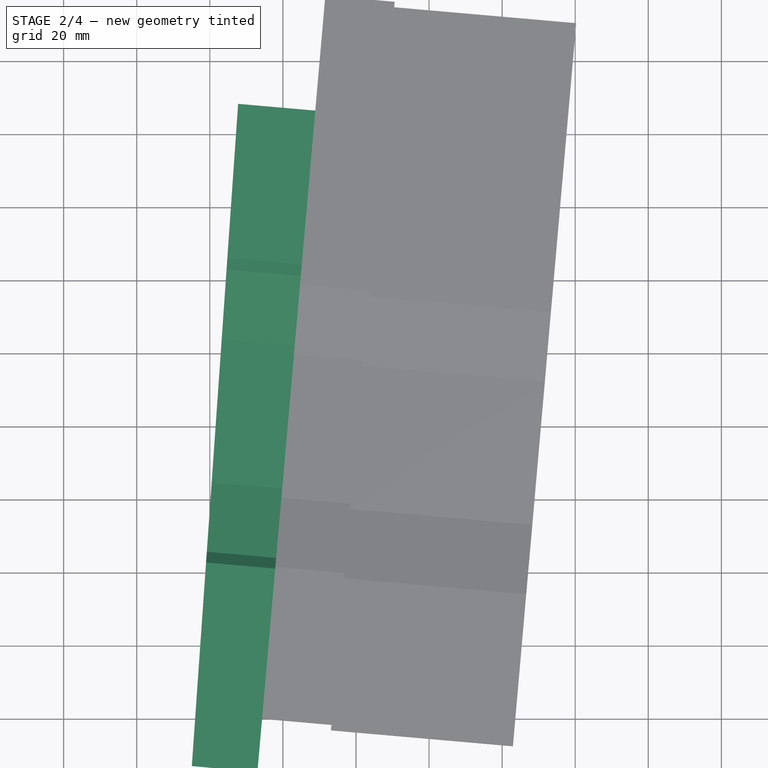
[diagram: stage 2 of 4 — top view after this stage's code; geometry added in this stage tinted green]
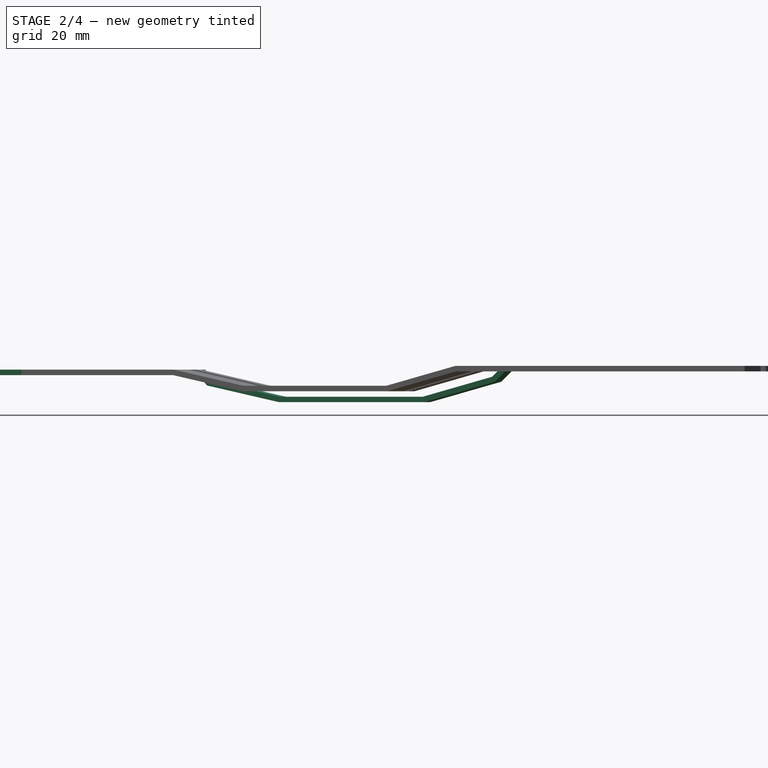
[diagram: stage 2 of 4 — right view after this stage's code; geometry added in this stage tinted green]
FEATURE [PartDesign::Pad] Pad002  label="C2Pad"
  BaseFeature = -> Pad003
  Direction = (0.996195,-0.0871557,-1e-16)
  Length = 38.1
  Length2 = 10
  Midplane = true
  Placement = pos=(56.7844,-1.64036,0) rot=(0.610924,0.559809,0.559809;2.04477rad)
  Profile = -> Sketch004
  ReferenceAxis = -> Sketch004 [N_Axis]
  Type = 0
  expr: Length = 2 * Spreadsheet.OneU
FEATURE [PartDesign::Pocket] Pocket002  label="C2Pocket"
  BaseFeature = -> Pad002
  Direction = (0,0,-1)
  Length = 50
  Length2 = 5
  Midplane = true
  Placement = pos=(56.7844,-1.64036,0) rot=(0.610924,0.559809,0.559809;2.04477rad)
  Profile = -> Sketch005
  ReferenceAxis = -> Sketch005 [N_Axis]
  Type = 0
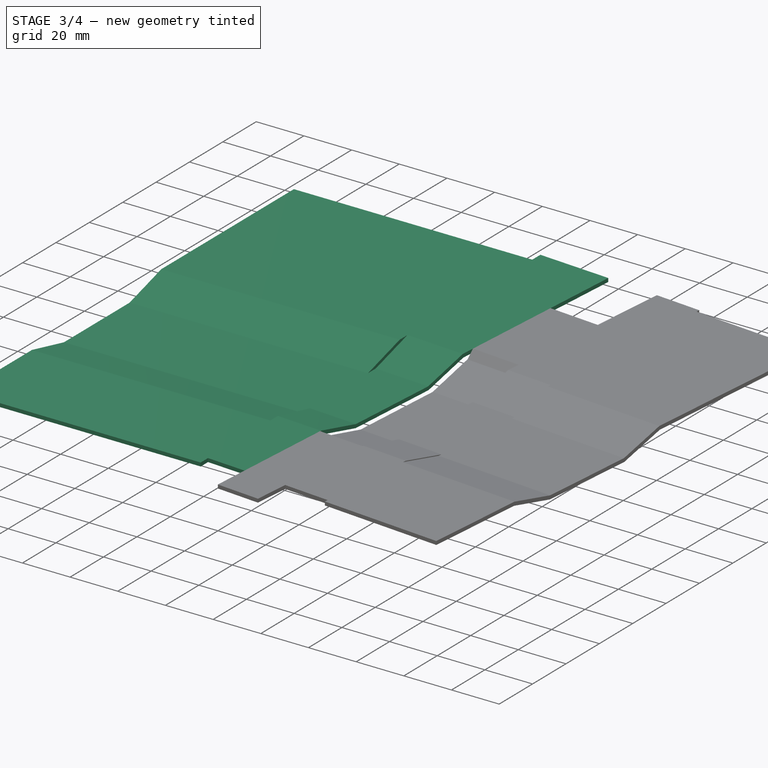
[diagram: stage 3 of 4 — iso view after this stage's code; geometry added in this stage tinted green]
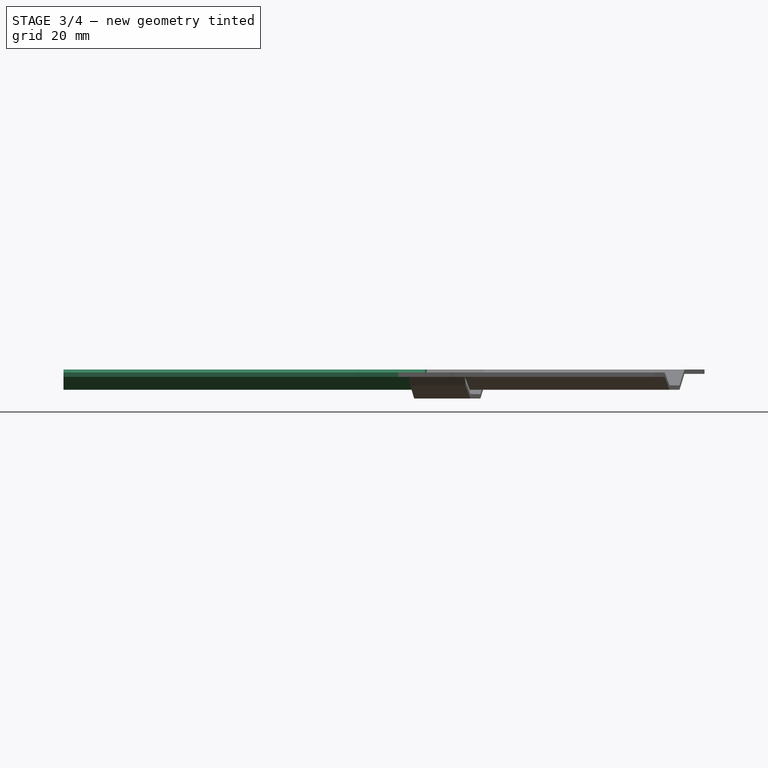
[diagram: stage 3 of 4 — front view after this stage's code; geometry added in this stage tinted green]
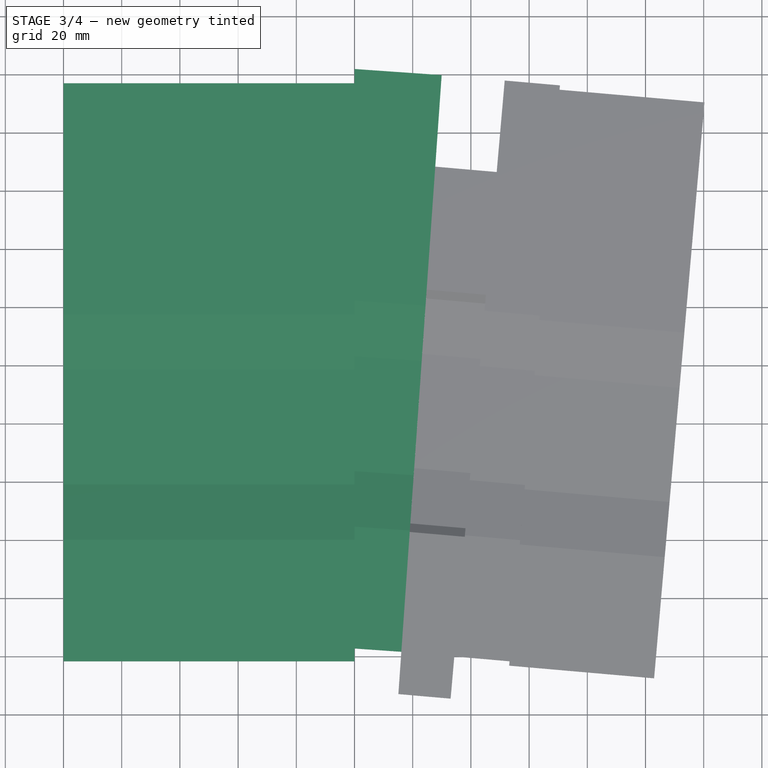
[diagram: stage 3 of 4 — top view after this stage's code; geometry added in this stage tinted green]
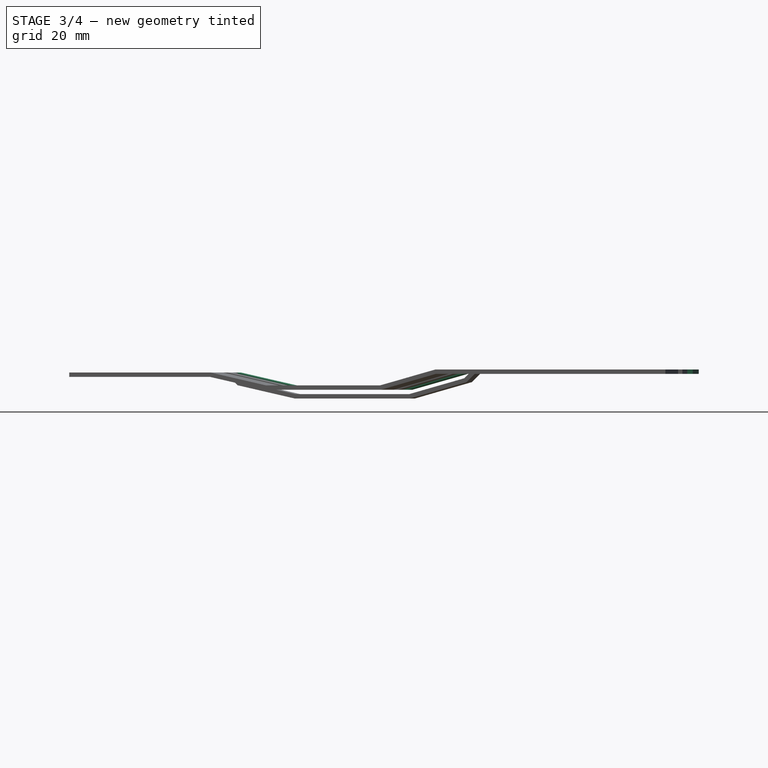
[diagram: stage 3 of 4 — right view after this stage's code; geometry added in this stage tinted green]
FEATURE [PartDesign::Pad] Pad001  label="C3Pad"
  BaseFeature = -> Pocket002
  Direction = (0.997564,-0.0697565,-2e-16)
  Length = 38.1
  Length2 = 10
  Midplane = true
  Placement = pos=(56.7844,-1.64036,0) rot=(0.610924,0.559809,0.559809;2.04477rad)
  Profile = -> Sketch002
  ReferenceAxis = -> Sketch002 [N_Axis]
  Type = 0
  expr: Length = 2 * Spreadsheet.OneU
FEATURE [PartDesign::Pocket] Pocket  label="C3Pocket"
  BaseFeature = -> Pad001
  Direction = (0,0,-1)
  Length = 50
  Length2 = 5
  Midplane = true
  Placement = pos=(56.7844,-1.64036,0) rot=(0.610924,0.559809,0.559809;2.04477rad)
  Profile = -> Sketch003
  ReferenceAxis = -> Sketch003 [N_Axis]
  Type = 0
FEATURE [PartDesign::Pad] Pad  label="C4Pad"
  BaseFeature = -> Pocket
  Direction = (1,0,0)
  Length = 100
  Length2 = 23
  Placement = pos=(56.7844,-1.64036,0) rot=(0.610924,0.559809,0.559809;2.04477rad)
  Profile = -> Sketch
  ReferenceAxis = -> Sketch [N_Axis]
  Reversed = true
  TaperAngle2 = 12
  Type = 0
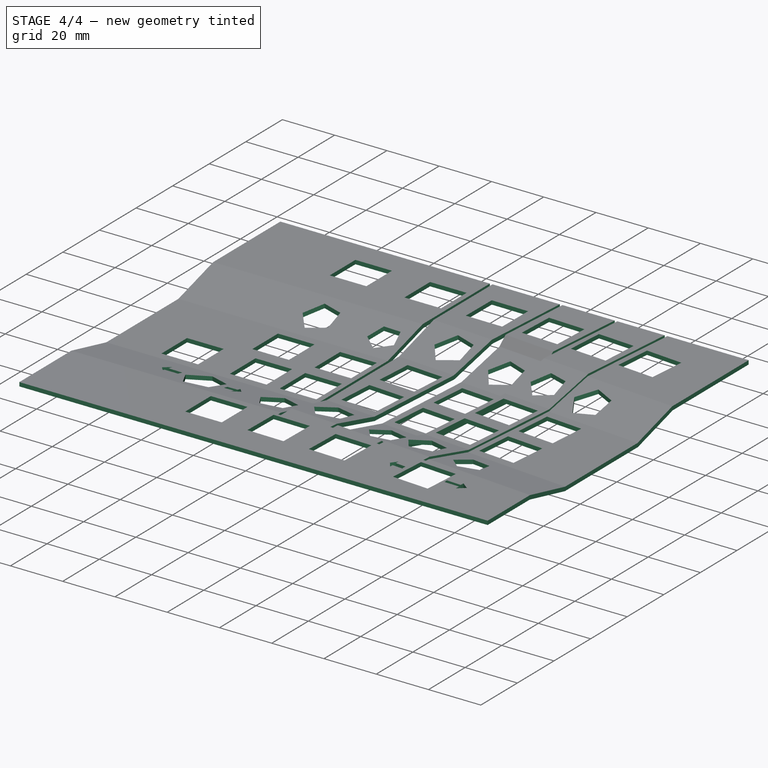
[diagram: stage 4 of 4 — iso view after this stage's code; geometry added in this stage tinted green]
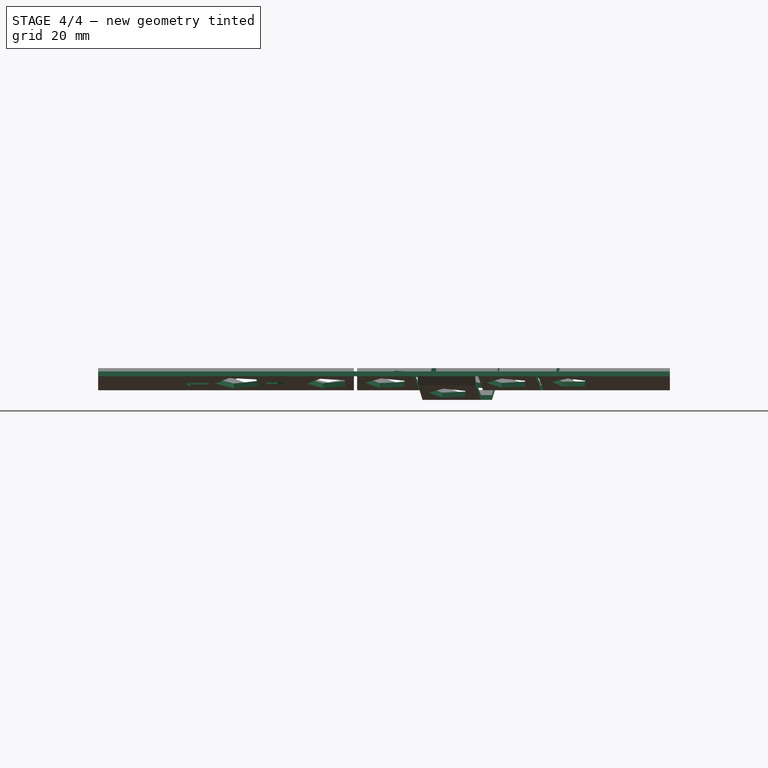
[diagram: stage 4 of 4 — front view after this stage's code; geometry added in this stage tinted green]
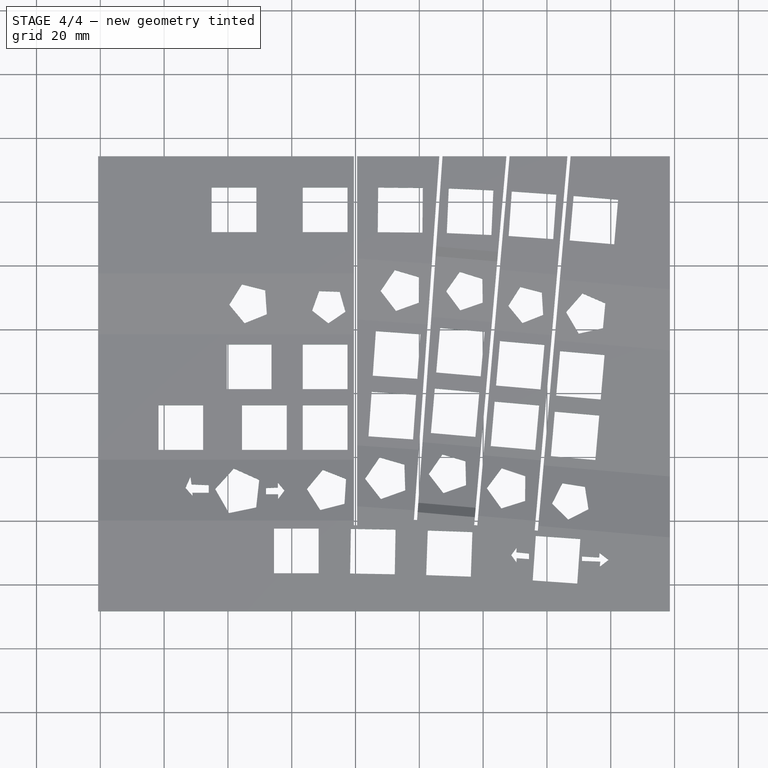
[diagram: stage 4 of 4 — top view after this stage's code; geometry added in this stage tinted green]
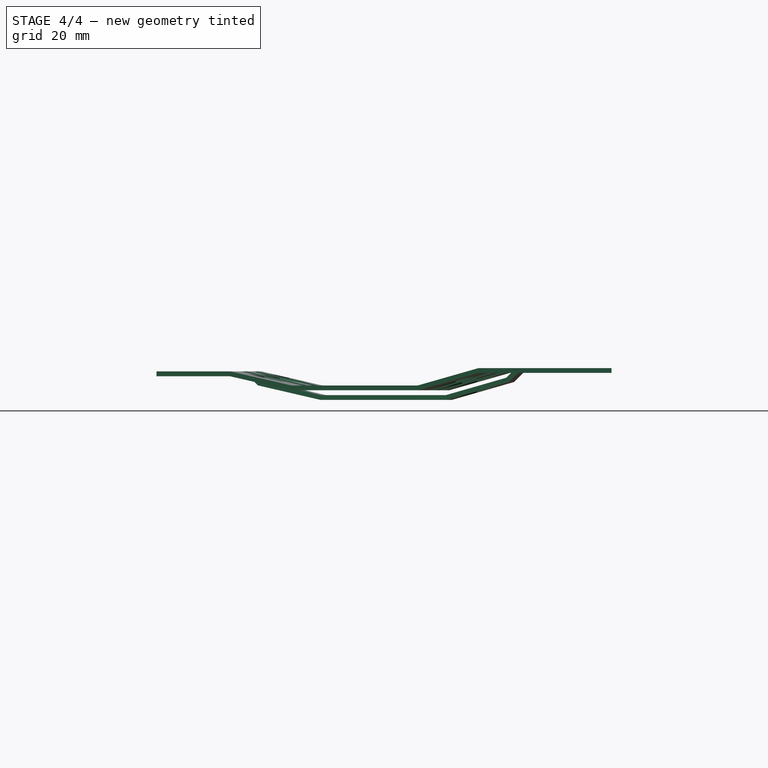
[diagram: stage 4 of 4 — right view after this stage's code; geometry added in this stage tinted green]
FEATURE [Sketcher::SketchObject] Sketch008  label="OutlineSketch"
  FullyConstrained = false
  MapMode = 5
  Support = -> [XY_Plane]
  expr: Constraints[146] = Spreadsheet.OneUCutout
  expr: Constraints[147] = Spreadsheet.OneUCutout
  expr: Constraints[149] = Spreadsheet.C3Stagger
  expr: Constraints[165] = Spreadsheet.R2VOffset
  expr: Constraints[166] = Spreadsheet.OneU
  expr: Constraints[168] = 1.5 * Spreadsheet.OneU
  expr: Constraints[169] = 1.75 * Spreadsheet.OneU
  expr: Constraints[170] = Spreadsheet.OneU
  expr: Constraints[237] = Spreadsheet.OneUCutout
  expr: Constraints[253] = Spreadsheet.R2VOffset
  expr: Constraints[254] = Spreadsheet.OneU
  expr: Constraints[255] = Spreadsheet.OneU
  expr: Constraints[256] = Spreadsheet.OneU
  expr: Constraints[301] = Spreadsheet.OneUCutout
  expr: Constraints[308] = Spreadsheet.C1Stagger
  expr: Constraints[314] = Spreadsheet.R2VOffset
  expr: Constraints[362] = Spreadsheet.OneUCutout
  expr: Constraints[371] = Spreadsheet.C0Stagger
  expr: Constraints[376] = Spreadsheet.OneU
  expr: Constraints[377] = Spreadsheet.OneU
  expr: Constraints[378] = Spreadsheet.OneU
  expr: Constraints[400] = Spreadsheet.OneU
  expr: Constraints[401] = Spreadsheet.OneU
  expr: Constraints[402] = Spreadsheet.R2VOffset
  expr: Constraints[435] = Spreadsheet.OneUCutout
  expr: Constraints[441] = Spreadsheet.OneU
  expr: Constraints[57] = Spreadsheet.CutoutWidth / 2
  expr: Constraints[58] = Spreadsheet.CutoutWidth / 2
  expr: Constraints[61] = Spreadsheet.C4Angle
  expr: Constraints[62] = Spreadsheet.OneU
  expr: Constraints[64] = Spreadsheet.CutoutWidth / 2
  expr: Constraints[65] = Spreadsheet.CutoutWidth / 2
  expr: Constraints[70] = Spreadsheet.C2Stagger
  expr: Constraints[72] = Spreadsheet.C3Angle_Cum
  expr: Constraints[73] = Spreadsheet.OneU
  expr: Constraints[75] = Spreadsheet.CutoutWidth / 2
  expr: Constraints[76] = Spreadsheet.CutoutWidth / 2
  expr: Constraints[78] = Spreadsheet.OneU
  expr: Constraints[80] = Spreadsheet.CutoutWidth / 2
  expr: Constraints[81] = Spreadsheet.CutoutWidth / 2
  expr: Constraints[84] = Spreadsheet.R2VOffset
  expr: Constraints[97] = Spreadsheet.OneU
  expr: Constraints[98] = Spreadsheet.OneU
  expr: Constraints[99] = Spreadsheet.OneU
  sketch-geometry (169):
    g0: LineSegment StartX=-131.297 StartY=174.947 StartZ=0 EndX=137.663 EndY=174.947 EndZ=0
    g1: LineSegment StartX=137.663 StartY=174.947 StartZ=0 EndX=137.663 EndY=-63.2028 EndZ=0
    g2: LineSegment StartX=137.663 StartY=-63.2028 StartZ=0 EndX=-131.297 EndY=-63.2028 EndZ=0
    g3: LineSegment StartX=-131.297 StartY=-63.2028 StartZ=0 EndX=-131.297 EndY=174.947 EndZ=0
    g4: LineSegment StartX=-80.6868 StartY=-28.4543 StartZ=0 EndX=-80.6868 EndY=114.196 EndZ=0
    g5: LineSegment StartX=-80.6868 StartY=114.196 StartZ=0 EndX=-0.5 EndY=114.196 EndZ=0
    g6: LineSegment StartX=-0.5 StartY=114.196 StartZ=0 EndX=-0.5 EndY=-1.5 EndZ=0
    g7: LineSegment StartX=-0.5 StartY=-1.5 StartZ=0 EndX=0.5 EndY=-1.5 EndZ=0
    g8: LineSegment StartX=0.5 StartY=-1.5 StartZ=0 EndX=0.5 EndY=114.196 EndZ=0
    g9: LineSegment StartX=0.5 StartY=114.196 StartZ=0 EndX=26.266 EndY=114.196 EndZ=0
    g10: LineSegment StartX=26.266 StartY=114.196 StartZ=0 EndX=18.2955 EndY=0.213325 EndZ=0
    g11: LineSegment StartX=18.2955 StartY=0.213325 StartZ=0 EndX=19.2931 EndY=0.143569 EndZ=0
    g12: LineSegment StartX=19.2931 StartY=0.143569 StartZ=0 EndX=27.2685 EndY=114.196 EndZ=0
    g13: LineSegment StartX=27.2685 StartY=114.196 StartZ=0 EndX=47.2941 EndY=114.196 EndZ=0
    g14: LineSegment StartX=47.2941 StartY=114.196 StartZ=0 EndX=37.178 EndY=-1.43076 EndZ=0
    g15: LineSegment StartX=37.178 StartY=-1.43076 StartZ=0 EndX=38.1742 EndY=-1.51792 EndZ=0
    g16: LineSegment StartX=38.1742 StartY=-1.51792 StartZ=0 EndX=48.2979 EndY=114.196 EndZ=0
    g17: LineSegment StartX=48.2979 StartY=114.196 StartZ=0 EndX=66.4169 EndY=114.196 EndZ=0
    g18: LineSegment StartX=66.4169 StartY=114.196 StartZ=0 EndX=56.1556 EndY=-3.09108 EndZ=0
    g19: LineSegment StartX=56.1556 StartY=-3.09108 StartZ=0 EndX=57.1517 EndY=-3.17823 EndZ=0
    g20: LineSegment StartX=57.1517 StartY=-3.17823 StartZ=0 EndX=67.4207 EndY=114.196 EndZ=0
    g21: LineSegment StartX=67.4207 StartY=114.196 StartZ=0 EndX=98.5363 EndY=114.196 EndZ=0
    g22: LineSegment StartX=98.5363 StartY=114.196 StartZ=0 EndX=98.5363 EndY=-28.4543 EndZ=0
    g23: LineSegment StartX=98.5363 StartY=-28.4543 StartZ=0 EndX=-80.6868 EndY=-28.4543 EndZ=0
    g24: LineSegment StartX=-0.5 StartY=114.196 StartZ=0 EndX=0.5 EndY=114.196 EndZ=0
    g25: LineSegment StartX=26.266 StartY=114.196 StartZ=0 EndX=27.2685 EndY=114.196 EndZ=0
    g26: LineSegment StartX=47.2941 StartY=114.196 StartZ=0 EndX=48.2979 EndY=114.196 EndZ=0
    g27: LineSegment StartX=66.4169 StartY=114.196 StartZ=0 EndX=67.4207 EndY=114.196 EndZ=0
    g28: LineSegment StartX=0 StartY=4.5 StartZ=0 EndX=19.0036 EndY=3.17114 EndZ=0
    g29: LineSegment StartX=0 StartY=4.5 StartZ=0 EndX=13.2178 EndY=4.5 EndZ=0
    g30: LineSegment StartX=19.0036 StartY=3.17114 StartZ=0 EndX=19.178 EndY=5.66505 EndZ=0
    g31: LineSegment StartX=19.178 StartY=5.66505 StartZ=0 EndX=38.1555 EndY=4.00473 EndZ=0
    g32: LineSegment StartX=19.178 StartY=5.66505 StartZ=0 EndX=35.1701 EndY=5.66505 EndZ=0
    g33: LineSegment StartX=37.9376 StartY=1.51425 StartZ=0 EndX=56.9151 EndY=-0.146071 EndZ=0
    g34: LineSegment StartX=19.178 StartY=5.66505 StartZ=0 EndX=20.3769 EndY=22.8097 EndZ=0
    g35: LineSegment StartX=20.3769 StartY=22.8097 StartZ=0 EndX=1.37326 EndY=24.1385 EndZ=0
    g36: LineSegment StartX=1.37326 StartY=24.1385 StartZ=0 EndX=4.03098 EndY=62.1457 EndZ=0
    g37: LineSegment StartX=4.03098 StartY=62.1457 StartZ=0 EndX=23.0346 EndY=60.8169 EndZ=0
    g38: LineSegment StartX=23.0346 StartY=60.8169 StartZ=0 EndX=20.3769 EndY=22.8097 EndZ=0
    g39: LineSegment StartX=2.70212 StartY=43.1421 StartZ=0 EndX=21.7057 EndY=41.8133 EndZ=0
    g40: LineSegment StartX=4.06825 StartY=26.4813 StartZ=0 EndX=5.04484 EndY=40.4472 EndZ=0
    g41: LineSegment StartX=5.04484 StartY=40.4472 StartZ=0 EndX=19.0107 EndY=39.4706 EndZ=0
    g42: LineSegment StartX=19.0107 StartY=39.4706 StartZ=0 EndX=18.0341 EndY=25.5047 EndZ=0
    g43: LineSegment StartX=18.0341 StartY=25.5047 StartZ=0 EndX=4.06825 EndY=26.4813 EndZ=0
    g44: LineSegment StartX=5.39711 StartY=45.4849 StartZ=0 EndX=6.3737 EndY=59.4508 EndZ=0
    g45: LineSegment StartX=6.3737 StartY=59.4508 StartZ=0 EndX=20.3396 EndY=58.4742 EndZ=0
    g46: LineSegment StartX=20.3396 StartY=58.4742 StartZ=0 EndX=19.363 EndY=44.5083 EndZ=0
    g47: LineSegment StartX=19.363 StartY=44.5083 StartZ=0 EndX=5.39711 EndY=45.4849 EndZ=0
    g48: LineSegment StartX=10.9807 StartY=61.6598 StartZ=0 EndX=10.8045 EndY=59.1409 EndZ=0
    g49: LineSegment StartX=19.9759 StartY=53.2731 StartZ=0 EndX=22.4947 EndY=53.097 EndZ=0
    g50: LineSegment StartX=15.4029 StartY=44.7852 StartZ=0 EndX=15.2268 EndY=42.2663 EndZ=0
    g51: LineSegment StartX=3.37342 StartY=52.7421 StartZ=0 EndX=5.89227 EndY=52.566 EndZ=0
    g52: LineSegment StartX=10.6072 StartY=42.5894 StartZ=0 EndX=10.4311 EndY=40.0705 EndZ=0
    g53: LineSegment StartX=18.738 StartY=35.5703 StartZ=0 EndX=21.2569 EndY=35.3942 EndZ=0
    g54: LineSegment StartX=13.8475 StartY=25.7974 StartZ=0 EndX=13.6713 EndY=23.2786 EndZ=0
    g55: LineSegment StartX=2.16056 StartY=35.3974 StartZ=0 EndX=4.67941 EndY=35.2213 EndZ=0
    g56: LineSegment StartX=0 StartY=19.6865 StartZ=0 EndX=-71.4375 EndY=19.6865 EndZ=0
    g57: LineSegment StartX=-71.4375 StartY=19.6865 StartZ=0 EndX=-71.4375 EndY=38.7365 EndZ=0
    g58: LineSegment StartX=-71.4375 StartY=38.7365 StartZ=0 EndX=0 EndY=38.7365 EndZ=0
    g59: LineSegment StartX=-19.05 StartY=38.7365 StartZ=0 EndX=-19.05 EndY=19.6865 EndZ=0
    g60: LineSegment StartX=-47.625 StartY=38.7365 StartZ=0 EndX=-47.625 EndY=57.7865 EndZ=0
    g61: LineSegment StartX=-47.625 StartY=57.7865 StartZ=0 EndX=-19.05 EndY=57.7865 EndZ=0
    g62: LineSegment StartX=-19.05 StartY=57.7865 StartZ=0 EndX=-19.05 EndY=38.7365 EndZ=0
    g63: LineSegment StartX=-38.1 StartY=38.7365 StartZ=0 EndX=-38.1 EndY=19.6865 EndZ=0
    g64: LineSegment StartX=-40.3375 StartY=55.2615 StartZ=0 EndX=-26.3375 EndY=55.2615 EndZ=0
    g65: LineSegment StartX=-26.3375 StartY=55.2615 StartZ=0 EndX=-26.3375 EndY=41.2615 EndZ=0
    g66: LineSegment StartX=-26.3375 StartY=41.2615 StartZ=0 EndX=-40.3375 EndY=41.2615 EndZ=0
    g67: LineSegment StartX=-40.3375 StartY=41.2615 StartZ=0 EndX=-40.3375 EndY=55.2615 EndZ=0
    g68: LineSegment StartX=-35.575 StartY=36.2115 StartZ=0 EndX=-21.575 EndY=36.2115 EndZ=0
    g69: LineSegment StartX=-21.575 StartY=36.2115 StartZ=0 EndX=-21.575 EndY=22.2115 EndZ=0
    g70: LineSegment StartX=-21.575 StartY=22.2115 StartZ=0 EndX=-35.575 EndY=22.2115 EndZ=0
    g71: LineSegment StartX=-35.575 StartY=22.2115 StartZ=0 EndX=-35.575 EndY=36.2115 EndZ=0
    g72: LineSegment StartX=-61.7688 StartY=36.2115 StartZ=0 EndX=-47.7688 EndY=36.2115 EndZ=0
    g73: LineSegment StartX=-47.7688 StartY=36.2115 StartZ=0 EndX=-47.7688 EndY=22.2115 EndZ=0
    g74: LineSegment StartX=-47.7688 StartY=22.2115 StartZ=0 EndX=-61.7688 EndY=22.2115 EndZ=0
    g75: LineSegment StartX=-61.7688 StartY=22.2115 StartZ=0 EndX=-61.7688 EndY=36.2115 EndZ=0
    g76: LineSegment StartX=-37.3022 StartY=57.7865 StartZ=0 EndX=-37.3022 EndY=55.2615 EndZ=0
    g77: LineSegment StartX=-47.625 StartY=51.7765 StartZ=0 EndX=-40.3375 EndY=51.7765 EndZ=0
    g78: LineSegment StartX=-26.3375 StartY=51.4402 StartZ=0 EndX=-19.05 EndY=51.4402 EndZ=0
    g79: LineSegment StartX=-47.7145 StartY=41.2615 StartZ=0 EndX=-47.7145 EndY=38.7365 EndZ=0
    g80: LineSegment StartX=-56.6576 StartY=38.7365 StartZ=0 EndX=-56.6576 EndY=36.2115 EndZ=0
    g81: LineSegment StartX=-57.6158 StartY=22.2115 StartZ=0 EndX=-57.6158 EndY=19.6865 EndZ=0
    g82: LineSegment StartX=-21.575 StartY=31.2661 StartZ=0 EndX=-19.05 EndY=31.2661 EndZ=0
    g83: LineSegment StartX=-35.575 StartY=31.0979 StartZ=0 EndX=-38.1 EndY=31.0979 EndZ=0
    g84: LineSegment StartX=-47.7688 StartY=32.7231 StartZ=0 EndX=-38.1 EndY=32.7231 EndZ=0
    g85: LineSegment StartX=-32.564 StartY=38.7365 StartZ=0 EndX=-32.564 EndY=36.2115 EndZ=0
    g86: LineSegment StartX=-32.5774 StartY=22.2115 StartZ=0 EndX=-32.5774 EndY=19.6865 EndZ=0
    g87: LineSegment StartX=-61.7687 StartY=32.2748 StartZ=0 EndX=-71.4375 EndY=32.2748 EndZ=0
    g88: LineSegment StartX=38.1555 StartY=4.00473 StartZ=0 EndX=43.1919 EndY=61.5713 EndZ=0
    g89: LineSegment StartX=43.1919 StartY=61.5713 StartZ=0 EndX=24.2144 EndY=63.2317 EndZ=0
    g90: LineSegment StartX=24.2144 StartY=63.2317 StartZ=0 EndX=20.8938 EndY=25.2766 EndZ=0
    g91: LineSegment StartX=20.8938 StartY=25.2766 StartZ=0 EndX=39.8713 EndY=23.6163 EndZ=0
    g92: LineSegment StartX=22.5541 StartY=44.2542 StartZ=0 EndX=41.5316 EndY=42.5938 EndZ=0
    g93: LineSegment StartX=26.5097 StartY=60.4962 StartZ=0 EndX=40.4565 EndY=59.276 EndZ=0
    g94: LineSegment StartX=40.4565 StartY=59.276 StartZ=0 EndX=39.2363 EndY=45.3293 EndZ=0
    g95: LineSegment StartX=39.2363 StartY=45.3293 StartZ=0 EndX=25.2896 EndY=46.5495 EndZ=0
    g96: LineSegment StartX=25.2896 StartY=46.5495 StartZ=0 EndX=26.5097 EndY=60.4962 EndZ=0
    g97: LineSegment StartX=24.8494 StartY=41.5187 StartZ=0 EndX=38.7961 EndY=40.2985 EndZ=0
    g98: LineSegment StartX=38.7961 StartY=40.2985 StartZ=0 EndX=37.576 EndY=26.3518 EndZ=0
    g99: LineSegment StartX=37.576 StartY=26.3518 StartZ=0 EndX=23.6292 EndY=27.572 EndZ=0
    g100: LineSegment StartX=23.6292 StartY=27.572 StartZ=0 EndX=24.8494 EndY=41.5187 EndZ=0
    g101: LineSegment StartX=29.7348 StartY=62.7487 StartZ=0 EndX=29.5147 EndY=60.2333 EndZ=0
    g102: LineSegment StartX=29.077 StartY=46.2181 StartZ=0 EndX=28.8569 EndY=43.7027 EndZ=0
    g103: LineSegment StartX=23.661 StartY=56.9056 StartZ=0 EndX=26.1763 EndY=56.6855 EndZ=0
    g104: LineSegment StartX=40.1454 StartY=55.7203 StartZ=0 EndX=42.6608 EndY=55.5002 EndZ=0
    g105: LineSegment StartX=29.9359 StartY=43.6083 StartZ=0 EndX=29.7158 EndY=41.0929 EndZ=0
    g106: LineSegment StartX=28.4429 StartY=27.1508 StartZ=0 EndX=28.2228 EndY=24.6354 EndZ=0
    g107: LineSegment StartX=22.1097 StartY=39.1745 StartZ=0 EndX=24.6251 EndY=38.9544 EndZ=0
    g108: LineSegment StartX=38.5932 StartY=37.9794 StartZ=0 EndX=41.1086 EndY=37.7593 EndZ=0
    g109: LineSegment StartX=38.1555 StartY=4.00473 StartZ=0 EndX=37.9376 EndY=1.51425 EndZ=0
    g110: LineSegment StartX=56.9151 StartY=-0.146071 StartZ=0 EndX=65.0606 EndY=92.9567 EndZ=0
    g111: LineSegment StartX=58.6309 StartY=19.4655 StartZ=0 EndX=39.6534 EndY=21.1258 EndZ=0
    g112: LineSegment StartX=41.3137 StartY=40.1033 StartZ=0 EndX=60.2912 EndY=38.443 EndZ=0
    g113: LineSegment StartX=42.974 StartY=59.0809 StartZ=0 EndX=61.9515 EndY=57.4205 EndZ=0
    g114: LineSegment StartX=44.0492 StartY=42.3987 StartZ=0 EndX=45.2694 EndY=56.3454 EndZ=0
    g115: LineSegment StartX=45.2694 StartY=56.3454 StartZ=0 EndX=59.2161 EndY=55.1252 EndZ=0
    g116: LineSegment StartX=59.2161 StartY=55.1252 StartZ=0 EndX=57.9959 EndY=41.1785 EndZ=0
    g117: LineSegment StartX=57.9959 StartY=41.1785 StartZ=0 EndX=44.0492 EndY=42.3987 EndZ=0
    g118: LineSegment StartX=43.609 StartY=37.3679 StartZ=0 EndX=57.5558 EndY=36.1477 EndZ=0
    g119: LineSegment StartX=57.5558 StartY=36.1477 StartZ=0 EndX=56.3356 EndY=22.201 EndZ=0
    g120: LineSegment StartX=56.3356 StartY=22.201 StartZ=0 EndX=42.3889 EndY=23.4212 EndZ=0
    g121: LineSegment StartX=42.3889 StartY=23.4212 StartZ=0 EndX=43.609 EndY=37.3679 EndZ=0
    g122: LineSegment StartX=47.3413 StartY=39.576 StartZ=0 EndX=47.1212 EndY=37.0606 EndZ=0
    g123: LineSegment StartX=45.9941 StartY=23.1057 StartZ=0 EndX=45.774 EndY=20.5904 EndZ=0
    g124: LineSegment StartX=57.2126 StartY=32.2257 StartZ=0 EndX=59.728 EndY=32.0057 EndZ=0
    g125: LineSegment StartX=42.8824 StartY=29.0627 StartZ=0 EndX=40.367 EndY=29.2828 EndZ=0
    g126: LineSegment StartX=42.1221 StartY=49.3428 StartZ=0 EndX=44.6375 EndY=49.1227 EndZ=0
    g127: LineSegment StartX=58.6131 StartY=48.233 StartZ=0 EndX=61.1285 EndY=48.0129 EndZ=0
    g128: LineSegment StartX=49.1244 StartY=58.5428 StartZ=0 EndX=48.9043 EndY=56.0274 EndZ=0
    g129: LineSegment StartX=48.8355 StartY=41.9799 StartZ=0 EndX=48.6155 EndY=39.4645 EndZ=0
    g130: LineSegment StartX=56.9151 StartY=-0.146071 StartZ=0 EndX=56.7844 EndY=-1.64036 EndZ=0
    g131: LineSegment StartX=56.7844 StartY=-1.64036 StartZ=0 EndX=75.7619 EndY=-3.30068 EndZ=0
    g132: LineSegment StartX=75.7619 StartY=-3.30068 StartZ=0 EndX=85.0766 EndY=103.167 EndZ=0
    g133: LineSegment StartX=58.5002 StartY=17.9712 StartZ=0 EndX=77.4777 EndY=16.3109 EndZ=0
    g134: LineSegment StartX=60.1605 StartY=36.9487 StartZ=0 EndX=79.138 EndY=35.2884 EndZ=0
    g135: LineSegment StartX=61.8208 StartY=55.9262 StartZ=0 EndX=80.7983 EndY=54.2659 EndZ=0
    g136: LineSegment StartX=64.1161 StartY=53.1908 StartZ=0 EndX=78.0629 EndY=51.9706 EndZ=0
    g137: LineSegment StartX=78.0629 StartY=51.9706 StartZ=0 EndX=76.8427 EndY=38.0239 EndZ=0
    g138: LineSegment StartX=76.8427 StartY=38.0239 StartZ=0 EndX=62.896 EndY=39.2441 EndZ=0
    g139: LineSegment StartX=62.896 StartY=39.2441 StartZ=0 EndX=64.1161 EndY=53.1908 EndZ=0
    g140: LineSegment StartX=62.4558 StartY=34.2133 StartZ=0 EndX=76.4025 EndY=32.9931 EndZ=0
    g141: LineSegment StartX=76.4025 StartY=32.9931 StartZ=0 EndX=75.1824 EndY=19.0464 EndZ=0
    g142: LineSegment StartX=75.1824 StartY=19.0464 StartZ=0 EndX=61.2356 EndY=20.2666 EndZ=0
    g143: LineSegment StartX=61.2356 StartY=20.2666 StartZ=0 EndX=62.4558 EndY=34.2133 EndZ=0
    g144: LineSegment StartX=68.4671 StartY=55.3448 StartZ=0 EndX=68.2471 EndY=52.8294 EndZ=0
    g145: LineSegment StartX=66.6491 StartY=38.9157 StartZ=0 EndX=66.429 EndY=36.4003 EndZ=0
    g146: LineSegment StartX=66.0825 StartY=36.4306 StartZ=0 EndX=65.8624 EndY=33.9152 EndZ=0
    g147: LineSegment StartX=65.2049 StartY=19.9193 StartZ=0 EndX=64.9848 EndY=17.4039 EndZ=0
    g148: LineSegment StartX=59.5948 StartY=30.4825 StartZ=0 EndX=62.1102 EndY=30.2624 EndZ=0
    g149: LineSegment StartX=76.141 StartY=30.0037 StartZ=0 EndX=78.6564 EndY=29.7836 EndZ=0
    g150: LineSegment StartX=61.3845 StartY=50.9389 StartZ=0 EndX=63.8999 EndY=50.7188 EndZ=0
    g151: LineSegment StartX=77.8705 StartY=49.772 StartZ=0 EndX=80.3859 EndY=49.552 EndZ=0
    g152: LineSegment StartX=-19.05 StartY=57.7865 StartZ=0 EndX=0 EndY=57.7865 EndZ=0
    g153: LineSegment StartX=-16.525 StartY=55.2615 StartZ=0 EndX=-2.525 EndY=55.2615 EndZ=0
    g154: LineSegment StartX=-2.525 StartY=55.2615 StartZ=0 EndX=-2.525 EndY=41.2615 EndZ=0
    g155: LineSegment StartX=-2.525 StartY=41.2615 StartZ=0 EndX=-16.525 EndY=41.2615 EndZ=0
    g156: LineSegment StartX=-16.525 StartY=41.2615 StartZ=0 EndX=-16.525 EndY=55.2615 EndZ=0
    g157: LineSegment StartX=-16.525 StartY=36.2115 StartZ=0 EndX=-2.525 EndY=36.2115 EndZ=0
    g158: LineSegment StartX=-2.525 StartY=36.2115 StartZ=0 EndX=-2.525 EndY=22.2115 EndZ=0
    g159: LineSegment StartX=-2.525 StartY=22.2115 StartZ=0 EndX=-16.525 EndY=22.2115 EndZ=0
    g160: LineSegment StartX=-16.525 StartY=22.2115 StartZ=0 EndX=-16.525 EndY=36.2115 EndZ=0
    g161: LineSegment StartX=-11.1588 StartY=57.7865 StartZ=0 EndX=-11.1588 EndY=55.2615 EndZ=0
    g162: LineSegment StartX=-11.3964 StartY=41.2615 StartZ=0 EndX=-11.3964 EndY=38.7365 EndZ=0
    g163: LineSegment StartX=-6.64321 StartY=38.7365 StartZ=0 EndX=-6.64321 EndY=36.2115 EndZ=0
    g164: LineSegment StartX=-6.88087 StartY=22.2115 StartZ=0 EndX=-6.88087 EndY=19.6865 EndZ=0
    g165: LineSegment StartX=-2.525 StartY=30.2685 StartZ=0 EndX=0 EndY=30.2685 EndZ=0
    g166: LineSegment StartX=-19.05 StartY=27.6542 StartZ=0 EndX=-16.525 EndY=27.6542 EndZ=0
    g167: LineSegment StartX=-19.05 StartY=45.1224 StartZ=0 EndX=-16.525 EndY=45.1224 EndZ=0
    g168: LineSegment StartX=0 StartY=49.5191 StartZ=0 EndX=-2.525 EndY=49.5191 EndZ=0
  constraints (500):
    c: Coincident(g0,g1)
    c: Coincident(g1,g2)
    c: Coincident(g2,g3)
    c: Coincident(g3,g0)
    c: Horizontal(g0)
    c: Horizontal(g2)
    c: Vertical(g1)
    c: Vertical(g3)
    c: Vertical(g4)
    c: Coincident(g4,g5)
    c: Horizontal(g5)
    c: Coincident(g5,g6)
    c: Vertical(g6)
    c: Coincident(g6,g7)
    c: Horizontal(g7)
    c: Coincident(g7,g8)
    c: Vertical(g8)
    c: Coincident(g8,g9)
    c: Horizontal(g9)
    c: Coincident(g9,g10)
    c: Coincident(g10,g11)
    c: Coincident(g11,g12)
    c: Coincident(g12,g13)
    c: Coincident(g13,g14)
    c: Coincident(g14,g15)
    c: Coincident(g15,g16)
    c: Coincident(g16,g17)
    c: Coincident(g17,g18)
    c: Coincident(g18,g19)
    c: Coincident(g19,g20)
    c: Coincident(g20,g21)
    c: Horizontal(g21)
    c: Coincident(g21,g22)
    c: Vertical(g22)
    c: Coincident(g22,g23)
    c: Coincident(g23,g4)
    c: Horizontal(g23)
    c: Horizontal(g13)
    c: Horizontal(g17)
    c: Coincident(g24,g5)
    c: Coincident(g24,g8)
    c: Coincident(g25,g9)
    c: Coincident(g25,g12)
    c: Coincident(g26,g13)
    c: Coincident(g26,g16)
    c: Coincident(g27,g17)
    c: Coincident(g27,g20)
    c: Horizontal(g27)
    c: Horizontal(g26)
    c: Horizontal(g24)
    c: Horizontal(g25)
    c: Parallel(g10,g12)
    c: Parallel(g14,g16)
    c: Parallel(g18,g20)
    c: Perpendicular(g10,g11)
    c: Perpendicular(g14,g15)
    c: Perpendicular(g18,g19)
    c: Distance(g-1,g6) = 0.5
    c: Distance(g-1,g8) = 0.5
    c: PointOnObject(g28,g-2)
    c: Horizontal(g29)
    c: Angle(g28,g29) = 0.0698132
    c: Distance(g28) = 19.05
    c: Perpendicular(g28,g10)
    c: Distance(g28,g10) = 0.5
    c: Distance(g28,g12) = 0.5
    c: Coincident(g30,g28)
    c: Coincident(g31,g30)
    c: Coincident(g32,g30)
    c: Horizontal(g32)
    c: Distance(g30) = 2.5
    c: Perpendicular(g28,g30)
    c: Angle(g31,g32) = 0.0872665
    c: Distance(g31) = 19.05
    c: Perpendicular(g14,g31)
    c: Distance(g31,g14) = 0.5
    c: Distance(g31,g16) = 0.5
    c: Parallel(g31,g33)
    c: Distance(g33) = 19.05
    c: Perpendicular(g33,g18)
    c: Distance(g33,g18) = 0.5
    c: Distance(g33,g20) = 0.5
    c: Coincident(g34,g30)
    c: Parallel(g30,g34)
    c: Distance(g34,g28) = 19.6865
    c: Coincident(g35,g34)
    c: Coincident(g35,g36)
    c: Coincident(g36,g37)
    c: Coincident(g37,g38)
    c: Coincident(g38,g34)
    c: Parallel(g38,g34)
    c: Perpendicular(g38,g37)
    c: Perpendicular(g38,g35)
    c: Perpendicular(g37,g36)
    c: PointOnObject(g39,g36)
    c: PointOnObject(g39,g38)
    c: Perpendicular(g36,g39)
    c: Distance(g35) = 19.05
    c: Distance(g39,g35) = 19.05
    c: Distance(g39,g37) = 19.05
    c: Coincident(g40,g41)
    c: Coincident(g41,g42)
    c: Coincident(g42,g43)
    c: Coincident(g43,g40)
    c: Coincident(g44,g45)
    c: Coincident(g45,g46)
    c: Coincident(g46,g47)
    c: Coincident(g47,g44)
    c: Parallel(g37,g45)
    c: Parallel(g44,g36)
    c: Parallel(g47,g39)
    c: Parallel(g46,g38)
    c: Parallel(g39,g41)
    c: Parallel(g36,g40)
    c: Parallel(g43,g35)
    c: Parallel(g42,g38)
    c: PointOnObject(g48,g37)
    c: PointOnObject(g48,g45)
    c: PointOnObject(g49,g46)
    c: PointOnObject(g49,g38)
    c: PointOnObject(g50,g47)
    c: PointOnObject(g50,g39)
    c: PointOnObject(g51,g36)
    c: PointOnObject(g51,g44)
    c: PointOnObject(g52,g39)
    c: PointOnObject(g52,g41)
    c: PointOnObject(g53,g42)
    c: PointOnObject(g53,g38)
    c: PointOnObject(g54,g43)
    c: PointOnObject(g54,g35)
    c: PointOnObject(g55,g36)
    c: PointOnObject(g55,g40)
    c: Perpendicular(g39,g52)
    c: Perpendicular(g39,g50)
    c: Perpendicular(g37,g48)
    c: Perpendicular(g36,g51)
    c: Perpendicular(g38,g49)
    c: Perpendicular(g36,g55)
    c: Perpendicular(g35,g54)
    c: Perpendicular(g38,g53)
    c: Equal(g52,g53)
    c: Equal(g53,g54)
    c: Equal(g54,g55)
    c: Equal(g51,g48)
    c: Equal(g48,g49)
    c: Equal(g49,g50)
    c: Distance(g47) = 14
    c: Distance(g41) = 14
    c: Coincident(g29,g28)
    c: DistanceY(g-1,g28) = 4.5
    c: Coincident(g56,g57)
    c: Coincident(g57,g58)
    c: Horizontal(g56)
    c: Horizontal(g58)
    c: Vertical(g57)
    c: Vertical(g59)
    c: PointOnObject(g56,g-2)
    c: Coincident(g60,g61)
    c: Coincident(g61,g62)
    c: Horizontal(g61)
    c: Vertical(g60)
    c: Vertical(g62)
    c: PointOnObject(g63,g58)
    c: PointOnObject(g63,g56)
    c: Vertical(g63)
    c: DistanceY(g-1,g56) = 19.6865
    c: DistanceY(g57,g57) = 19.05
    c: Equal(g60,g57)
    c: DistanceX(g61,g61) = 28.575
    c: Distance(g63,g57) = 33.3375
    c: Distance(g63,g59) = 19.05
    c: Coincident(g64,g65)
    c: Coincident(g65,g66)
    c: Coincident(g66,g67)
    c: Coincident(g67,g64)
    c: Horizontal(g64)
    c: Horizontal(g66)
    c: Vertical(g65)
    c: Vertical(g67)
    c: Coincident(g68,g69)
    c: Coincident(g69,g70)
    c: Coincident(g70,g71)
    c: Coincident(g71,g68)
    c: Horizontal(g68)
    c: Horizontal(g70)
    c: Vertical(g69)
    c: Vertical(g71)
    c: Coincident(g72,g73)
    c: Coincident(g73,g74)
    c: Coincident(g74,g75)
    c: Coincident(g75,g72)
    c: Horizontal(g72)
    c: Horizontal(g74)
    c: Vertical(g73)
    c: Vertical(g75)
    c: Vertical(g76)
    c: PointOnObject(g77,g60)
    c: PointOnObject(g77,g67)
    c: Horizontal(g77)
    c: PointOnObject(g78,g65)
    c: PointOnObject(g78,g62)
    c: Horizontal(g78)
    c: PointOnObject(g79,g66)
    c: PointOnObject(g79,g58)
    c: Vertical(g79)
    c: PointOnObject(g80,g58)
    c: PointOnObject(g80,g68)
    c: Vertical(g80)
    c: PointOnObject(g81,g70)
    c: PointOnObject(g81,g56)
    c: Vertical(g81)
    c: PointOnObject(g82,g69)
    c: PointOnObject(g82,g59)
    c: Horizontal(g82)
    c: PointOnObject(g83,g71)
    c: PointOnObject(g83,g63)
    c: Horizontal(g83)
    c: PointOnObject(g84,g73)
    c: PointOnObject(g84,g63)
    c: Horizontal(g84)
    c: PointOnObject(g85,g58)
    c: Vertical(g85)
    c: PointOnObject(g86,g74)
    c: Vertical(g86)
    c: PointOnObject(g87,g75)
    c: PointOnObject(g87,g57)
    c: Horizontal(g87)
    c: PointOnObject(g86,g56)
    c: Equal(g76,g79)
    c: Equal(g79,g80)
    c: Equal(g80,g81)
    c: Equal(g81,g85)
    c: Equal(g85,g86)
    c: Equal(g78,g77)
    c: Equal(g82,g83)
    c: Equal(g84,g87)
    c: PointOnObject(g85,g72)
    c: DistanceY(g75,g75) = 14
    c: Equal(g75,g72)
    c: Equal(g71,g68)
    c: Equal(g67,g64)
    c: Coincident(g88,g31)
    c: Coincident(g89,g88)
    c: Perpendicular(g31,g88)
    c: Perpendicular(g88,g89)
    c: Coincident(g90,g89)
    c: Coincident(g91,g90)
    c: PointOnObject(g91,g88)
    c: PointOnObject(g92,g90)
    c: PointOnObject(g92,g88)
    c: Parallel(g90,g88)
    c: Perpendicular(g88,g92)
    c: Perpendicular(g88,g91)
    c: Distance(g91,g31) = 19.6865
    c: Distance(g89) = 19.05
    c: Distance(g92,g89) = 19.05
    c: Distance(g92,g91) = 19.05
    c: Coincident(g93,g94)
    c: Coincident(g94,g95)
    c: Coincident(g95,g96)
    c: Coincident(g96,g93)
    c: Coincident(g97,g98)
    c: Coincident(g98,g99)
    c: Coincident(g99,g100)
    c: Coincident(g100,g97)
    c: Parallel(g88,g98)
    c: Parallel(g98,g100)
    c: Parallel(g100,g94)
    c: Parallel(g94,g96)
    c: Perpendicular(g98,g97)
    c: Perpendicular(g98,g99)
    c: Perpendicular(g93,g96)
    c: Perpendicular(g95,g96)
    c: PointOnObject(g101,g89)
    c: PointOnObject(g101,g93)
    c: PointOnObject(g102,g95)
    c: PointOnObject(g102,g92)
    c: PointOnObject(g103,g90)
    c: PointOnObject(g103,g96)
    c: PointOnObject(g104,g94)
    c: PointOnObject(g104,g88)
    c: PointOnObject(g105,g92)
    c: PointOnObject(g105,g97)
    c: PointOnObject(g106,g99)
    c: PointOnObject(g106,g91)
    c: PointOnObject(g107,g90)
    c: PointOnObject(g107,g100)
    c: PointOnObject(g108,g98)
    c: PointOnObject(g108,g88)
    c: Perpendicular(g92,g105)
    c: Perpendicular(g91,g106)
    c: Perpendicular(g107,g90)
    c: Perpendicular(g108,g88)
    c: Perpendicular(g102,g92)
    c: Perpendicular(g103,g90)
    c: Perpendicular(g89,g101)
    c: Perpendicular(g88,g104)
    c: Equal(g101,g102)
    c: Equal(g103,g104)
    c: Equal(g105,g106)
    c: Equal(g107,g108)
    c: Distance(g93) = 14
    c: Equal(g96,g93)
    c: Equal(g93,g97)
    c: Equal(g97,g100)
    c: Coincident(g109,g31)
    c: Coincident(g109,g33)
    c: Perpendicular(g31,g109)
    c: Distance(g109) = 2.5
    c: Coincident(g110,g33)
    c: Perpendicular(g110,g33)
    c: PointOnObject(g111,g110)
    c: PointOnObject(g111,g88)
    c: Perpendicular(g110,g111)
    c: Distance(g111,g33) = 19.6865
    c: PointOnObject(g112,g88)
    c: PointOnObject(g112,g110)
    c: PointOnObject(g113,g88)
    c: PointOnObject(g113,g110)
    c: Perpendicular(g110,g113)
    c: Perpendicular(g112,g110)
    c: Coincident(g114,g115)
    c: Coincident(g115,g116)
    c: Coincident(g116,g117)
    c: Coincident(g117,g114)
    c: Coincident(g118,g119)
    c: Coincident(g119,g120)
    c: Coincident(g120,g121)
    c: Coincident(g121,g118)
    c: PointOnObject(g122,g112)
    c: PointOnObject(g122,g118)
    c: PointOnObject(g123,g120)
    c: PointOnObject(g123,g111)
    c: PointOnObject(g124,g119)
    c: PointOnObject(g124,g110)
    c: PointOnObject(g125,g121)
    c: PointOnObject(g125,g88)
    c: PointOnObject(g126,g88)
    c: PointOnObject(g126,g114)
    c: PointOnObject(g127,g116)
    c: PointOnObject(g127,g110)
    c: PointOnObject(g128,g113)
    c: PointOnObject(g128,g115)
    c: PointOnObject(g129,g117)
    c: PointOnObject(g129,g112)
    c: Parallel(g114,g116)
    c: Parallel(g116,g121)
    c: Parallel(g121,g119)
    c: Parallel(g119,g110)
    c: Parallel(g120,g118)
    c: Parallel(g118,g117)
    c: Parallel(g117,g115)
    c: Parallel(g115,g111)
    c: Perpendicular(g112,g122)
    c: Perpendicular(g113,g128)
    c: Perpendicular(g117,g129)
    c: Perpendicular(g114,g126)
    c: Perpendicular(g127,g116)
    c: Perpendicular(g120,g123)
    c: Perpendicular(g119,g124)
    c: Perpendicular(g121,g125)
    c: Equal(g126,g127)
    c: Distance(g115) = 14
    c: Equal(g128,g129)
    c: Equal(g125,g124)
    c: Equal(g122,g123)
    c: Equal(g114,g115)
    c: Equal(g115,g118)
    c: Equal(g118,g121)
    c: Coincident(g130,g33)
    c: Parallel(g130,g110)
    c: Distance(g130) = 1.5
    c: Coincident(g131,g130)
    c: Coincident(g132,g131)
    c: Perpendicular(g131,g130)
    c: Perpendicular(g131,g132)
    c: Distance(g131) = 19.05
    c: Distance(g112,g111) = 19.05
    c: Distance(g112,g113) = 19.05
    c: PointOnObject(g133,g110)
    c: PointOnObject(g133,g132)
    c: PointOnObject(g134,g110)
    c: PointOnObject(g134,g132)
    c: PointOnObject(g135,g110)
    c: PointOnObject(g135,g132)
    c: Perpendicular(g132,g133)
    c: Perpendicular(g132,g134)
    c: Perpendicular(g132,g135)
    c: Coincident(g136,g137)
    c: Coincident(g137,g138)
    c: Coincident(g138,g139)
    c: Coincident(g139,g136)
    c: Coincident(g140,g141)
    c: Coincident(g141,g142)
    c: Coincident(g142,g143)
    c: Coincident(g143,g140)
    c: Parallel(g143,g141)
    c: Parallel(g141,g132)
    c: Parallel(g139,g137)
    c: Parallel(g137,g132)
    c: Distance(g134,g133) = 19.05
    c: Distance(g134,g135) = 19.05
    c: Distance(g133,g131) = 19.6865
    c: PointOnObject(g144,g135)
    c: PointOnObject(g144,g136)
    c: PointOnObject(g145,g138)
    c: PointOnObject(g145,g134)
    c: PointOnObject(g146,g134)
    c: PointOnObject(g146,g140)
    c: PointOnObject(g147,g142)
    c: PointOnObject(g147,g133)
    c: PointOnObject(g148,g110)
    c: PointOnObject(g148,g143)
    c: PointOnObject(g149,g141)
    c: PointOnObject(g149,g132)
    c: PointOnObject(g150,g110)
    c: PointOnObject(g150,g139)
    c: PointOnObject(g151,g137)
    c: PointOnObject(g151,g132)
    c: Perpendicular(g135,g144)
    c: Perpendicular(g138,g145)
    c: Perpendicular(g139,g150)
    c: Perpendicular(g137,g151)
    c: Parallel(g135,g136)
    c: Parallel(g136,g138)
    c: Parallel(g138,g140)
    c: Parallel(g140,g142)
    c: Perpendicular(g134,g146)
    c: Perpendicular(g142,g147)
    c: Perpendicular(g132,g149)
    c: Perpendicular(g110,g148)
    c: Equal(g149,g148)
    c: Equal(g146,g147)
    c: Equal(g145,g144)
    c: Equal(g150,g151)
    c: Distance(g136) = 14
    c: Equal(g136,g139)
    c: Equal(g139,g140)
    c: Equal(g140,g143)
    c: PointOnObject(g60,g58)
    c: PointOnObject(g58,g-2)
    c: DistanceX(g59,g-1) = 19.05
    c: Coincident(g62,g59)
    c: PointOnObject(g76,g64)
    c: PointOnObject(g76,g61)
    c: Coincident(g152,g61)
    c: PointOnObject(g152,g-2)
    c: Perpendicular(g-2,g152)
    c: Coincident(g153,g154)
    c: Coincident(g154,g155)
    c: Coincident(g155,g156)
    c: Coincident(g156,g153)
    c: Horizontal(g153)
    c: Horizontal(g155)
    c: Vertical(g154)
    c: Vertical(g156)
    c: Coincident(g157,g158)
    c: Coincident(g158,g159)
    c: Coincident(g159,g160)
    c: Coincident(g160,g157)
    c: Horizontal(g157)
    c: Horizontal(g159)
    c: Vertical(g158)
    c: Vertical(g160)
    c: PointOnObject(g161,g152)
    c: PointOnObject(g161,g153)
    c: Vertical(g161)
    c: PointOnObject(g162,g155)
    c: PointOnObject(g162,g58)
    c: Vertical(g162)
    c: PointOnObject(g163,g58)
    c: PointOnObject(g163,g157)
    c: Vertical(g163)
    c: PointOnObject(g164,g159)
    c: PointOnObject(g164,g56)
    c: Vertical(g164)
    c: PointOnObject(g165,g158)
    c: PointOnObject(g165,g-2)
    c: Horizontal(g165)
    c: PointOnObject(g166,g59)
    c: PointOnObject(g166,g160)
    c: Horizontal(g166)
    c: PointOnObject(g167,g62)
    c: PointOnObject(g167,g156)
    c: Horizontal(g167)
    c: PointOnObject(g168,g-2)
    c: PointOnObject(g168,g154)
    c: Horizontal(g168)
    c: Equal(g161,g167)
    c: Equal(g167,g162)
    c: Equal(g162,g168)
    c: Equal(g163,g165)
    c: Equal(g165,g164)
    c: Equal(g164,g166)
    c: Equal(g65,g156)
    c: Equal(g156,g160)
    c: DistanceY(g7,g-1) = 1.5
    c: Distance(g10,g28) = 3
    c: Distance(g15,g33) = 3
    c: Distance(g19,g131) = 1.5
FEATURE [PartDesign::Pocket] Pocket003  label="OutlinePocket"
  BaseFeature = -> Pad
  Direction = (0,0,-1)
  Length = 50
  Length2 = 5
  Midplane = true
  Placement = pos=(56.7844,-1.64036,0) rot=(0.610924,0.559809,0.559809;2.04477rad)
  Profile = -> Sketch008
  ReferenceAxis = -> Sketch008 [N_Axis]
  Refine = true
  Type = 1
FEATURE [Sketcher::SketchObject] Sketch009
  FullyConstrained = false
  expr: Constraints[10] = 2.25 * Spreadsheet.OneU
  expr: Constraints[111] = Spreadsheet.OneUCutout
  expr: Constraints[11] = Spreadsheet.OneU
  expr: Constraints[122] = Spreadsheet.R5VOffset
  expr: Constraints[126] = Spreadsheet.C3Angle_Cum
  expr: Constraints[140] = Spreadsheet.OneU
  expr: Constraints[1] = -Spreadsheet.C0LHS_Y
  expr: Constraints[20] = 1.25 * Spreadsheet.OneU
  expr: Constraints[275] = Spreadsheet.OneUCutout
  expr: Constraints[2] = Spreadsheet.C0LHS_X
  expr: Constraints[313] = Spreadsheet.OneU / 2
  sketch-geometry (230):
    g0: LineSegment StartX=0 StartY=0 StartZ=0 EndX=56.7844 EndY=-1.64036 EndZ=0
    g1: LineSegment StartX=42.2882 StartY=-1.29303 StartZ=0 EndX=85.0463 EndY=-4.28297 EndZ=0
    g2: LineSegment StartX=85.0463 StartY=-4.28297 StartZ=0 EndX=83.7174 EndY=-23.2866 EndZ=0
    g3: LineSegment StartX=83.7174 StartY=-23.2866 StartZ=0 EndX=40.9594 EndY=-20.2966 EndZ=0
    g4: LineSegment StartX=40.9594 StartY=-20.2966 StartZ=0 EndX=42.2882 EndY=-1.29303 EndZ=0
    g5: LineSegment StartX=85.0463 StartY=120.343 StartZ=0 EndX=85.0463 EndY=-50.7104 EndZ=0
    g6: LineSegment StartX=17.8262 StartY=-0.42719 StartZ=0 EndX=17.1614 EndY=-19.4656 EndZ=0
    g7: LineSegment StartX=17.1614 StartY=-19.4656 StartZ=0 EndX=40.9594 EndY=-20.2966 EndZ=0
    g8: LineSegment StartX=40.9594 StartY=-20.2966 StartZ=0 EndX=41.6242 EndY=-1.25823 EndZ=0
    g9: LineSegment StartX=41.6242 StartY=-1.25823 StartZ=0 EndX=17.8262 EndY=-0.42719 EndZ=0
    g10: LineSegment StartX=-6.31504 StartY=-0.00290141 StartZ=0 EndX=-6.64751 EndY=-19.05 EndZ=0
    g11: LineSegment StartX=-6.64751 StartY=-19.05 StartZ=0 EndX=17.1614 EndY=-19.4656 EndZ=0
    g12: LineSegment StartX=17.1614 StartY=-19.4656 StartZ=0 EndX=17.4938 EndY=-0.418487 EndZ=0
    g13: LineSegment StartX=17.4938 StartY=-0.418487 StartZ=0 EndX=-6.31504 EndY=-0.00290141 EndZ=0
    g14: LineSegment StartX=-30.46 StartY=0 StartZ=0 EndX=-30.46 EndY=-19.05 EndZ=0
    g15: LineSegment StartX=-30.46 StartY=-19.05 StartZ=0 EndX=-6.64751 EndY=-19.05 EndZ=0
    g16: LineSegment StartX=-6.64751 StartY=-19.05 StartZ=0 EndX=-6.64751 EndY=0 EndZ=0
    g17: LineSegment StartX=-6.64751 StartY=0 StartZ=0 EndX=-30.46 EndY=0 EndZ=0
    g18: LineSegment StartX=-30.46 StartY=0 StartZ=0 EndX=-6.64751 EndY=-19.05 EndZ=0
    g19: LineSegment StartX=-30.46 StartY=-19.05 StartZ=0 EndX=-6.64751 EndY=0 EndZ=0
    g20: LineSegment StartX=-6.31504 StartY=-0.00290141 StartZ=0 EndX=17.1614 EndY=-19.4656 EndZ=0
    g21: LineSegment StartX=-6.64751 StartY=-19.05 StartZ=0 EndX=17.4938 EndY=-0.418487 EndZ=0
    g22: LineSegment StartX=17.8262 StartY=-0.42719 StartZ=0 EndX=40.9594 EndY=-20.2966 EndZ=0
    g23: LineSegment StartX=17.1614 StartY=-19.4656 StartZ=0 EndX=41.6242 EndY=-1.25823 EndZ=0
    g24: LineSegment StartX=42.2882 StartY=-1.29303 StartZ=0 EndX=83.7174 EndY=-23.2866 EndZ=0
    g25: LineSegment StartX=85.0463 StartY=-4.28297 StartZ=0 EndX=40.9594 EndY=-20.2966 EndZ=0
    g26: GeomPoint X=-18.5538 Y=-9.525 Z=0
    g27: GeomPoint X=5.42316 Y=-9.73424 Z=0
    g28: GeomPoint X=29.3928 Y=-10.3619 Z=0
    g29: GeomPoint X=63.0028 Y=-12.2898 Z=0
    g30: LineSegment StartX=-25.5538 StartY=-16.525 StartZ=0 EndX=-25.5538 EndY=-2.525 EndZ=0
    g31: LineSegment StartX=-25.5538 StartY=-2.525 StartZ=0 EndX=-11.5538 EndY=-2.525 EndZ=0
    g32: LineSegment StartX=-11.5538 StartY=-2.525 StartZ=0 EndX=-11.5538 EndY=-16.525 EndZ=0
    g33: LineSegment StartX=-11.5538 StartY=-16.525 StartZ=0 EndX=-25.5538 EndY=-16.525 EndZ=0
    g34: GeomPoint X=-18.5538 Y=-9.525 Z=0
    g35: LineSegment StartX=-1.69794 StartY=-16.611 StartZ=0 EndX=-1.45361 EndY=-2.61314 EndZ=0
    g36: LineSegment StartX=-1.45361 StartY=-2.61314 StartZ=0 EndX=12.5443 EndY=-2.85748 EndZ=0
    g37: LineSegment StartX=12.5443 StartY=-2.85748 StartZ=0 EndX=12.2999 EndY=-16.8553 EndZ=0
    g38: LineSegment StartX=12.2999 StartY=-16.8553 StartZ=0 EndX=-1.69794 EndY=-16.611 EndZ=0
    g39: GeomPoint X=5.42316 Y=-9.73424 Z=0
    g40: LineSegment StartX=22.1527 StartY=-17.1133 StartZ=0 EndX=22.6413 EndY=-3.12188 EndZ=0
    g41: LineSegment StartX=22.6413 StartY=-3.12188 StartZ=0 EndX=36.6328 EndY=-3.61047 EndZ=0
    g42: LineSegment StartX=36.6328 StartY=-3.61047 StartZ=0 EndX=36.1442 EndY=-17.6019 EndZ=0
    g43: LineSegment StartX=36.1442 StartY=-17.6019 StartZ=0 EndX=22.1527 EndY=-17.1133 EndZ=0
    g44: GeomPoint X=29.3928 Y=-10.3619 Z=0
    g45: LineSegment StartX=55.5316 StartY=-18.7845 StartZ=0 EndX=56.5082 EndY=-4.81856 EndZ=0
    g46: LineSegment StartX=56.5082 StartY=-4.81856 StartZ=0 EndX=70.4741 EndY=-5.79515 EndZ=0
    g47: LineSegment StartX=70.4741 StartY=-5.79515 StartZ=0 EndX=69.4975 EndY=-19.761 EndZ=0
    g48: LineSegment StartX=69.4975 StartY=-19.761 StartZ=0 EndX=55.5316 EndY=-18.7845 EndZ=0
    g49: GeomPoint X=63.0028 Y=-12.2898 Z=0
    g50: LineSegment StartX=0 StartY=0 StartZ=0 EndX=0 EndY=77.4767 EndZ=0
    g51: LineSegment StartX=56.7844 StartY=-1.64036 StartZ=0 EndX=63.5369 EndY=75.5415 EndZ=0
    g52: LineSegment StartX=56.7844 StartY=-1.64036 StartZ=0 EndX=56.7844 EndY=17.7416 EndZ=0
    g53: LineSegment StartX=63.5369 StartY=75.5415 StartZ=0 EndX=66.0688 EndY=104.481 EndZ=0
    g54: LineSegment StartX=66.0688 StartY=104.481 StartZ=0 EndX=85.0463 EndY=102.821 EndZ=0
    g55: LineSegment StartX=85.0463 StartY=102.821 StartZ=0 EndX=83.386 EndY=83.8432 EndZ=0
    g56: LineSegment StartX=83.386 StartY=83.8432 StartZ=0 EndX=64.4085 EndY=85.5035 EndZ=0
    g57: LineSegment StartX=45.3051 StartY=86.8393 StartZ=0 EndX=46.634 EndY=105.843 EndZ=0
    g58: LineSegment StartX=46.634 StartY=105.843 StartZ=0 EndX=65.6376 EndY=104.514 EndZ=0
    g59: LineSegment StartX=65.6376 StartY=104.514 StartZ=0 EndX=64.3087 EndY=85.5105 EndZ=0
    g60: LineSegment StartX=64.3087 StartY=85.5105 StartZ=0 EndX=45.3051 EndY=86.8393 EndZ=0
    g61: LineSegment StartX=25.9735 StartY=87.6834 StartZ=0 EndX=26.8045 EndY=106.715 EndZ=0
    g62: LineSegment StartX=26.8045 StartY=106.715 StartZ=0 EndX=45.8364 EndY=105.884 EndZ=0
    g63: LineSegment StartX=45.8364 StartY=105.884 StartZ=0 EndX=45.0054 EndY=86.8524 EndZ=0
    g64: LineSegment StartX=45.0054 StartY=86.8524 StartZ=0 EndX=25.9735 EndY=87.6834 EndZ=0
    g65: LineSegment StartX=4.42437 StartY=87.8714 StartZ=0 EndX=4.59061 EndY=106.921 EndZ=0
    g66: LineSegment StartX=4.59061 StartY=106.921 StartZ=0 EndX=23.6399 EndY=106.754 EndZ=0
    g67: LineSegment StartX=23.6399 StartY=106.754 StartZ=0 EndX=23.4736 EndY=87.7052 EndZ=0
    g68: LineSegment StartX=23.4736 StartY=87.7052 StartZ=0 EndX=4.42437 EndY=87.8714 EndZ=0
    g69: LineSegment StartX=64.3087 StartY=85.5105 StartZ=0 EndX=64.4085 EndY=85.5035 EndZ=0
    g70: LineSegment StartX=45.0054 StartY=86.8524 StartZ=0 EndX=45.3051 EndY=86.8393 EndZ=0
    g71: LineSegment StartX=23.4736 StartY=87.7052 StartZ=0 EndX=25.9735 EndY=87.6834 EndZ=0
    g72: LineSegment StartX=0 StartY=106.921 StartZ=0 EndX=-19.05 EndY=106.921 EndZ=0
    g73: LineSegment StartX=-19.05 StartY=106.921 StartZ=0 EndX=-19.05 EndY=87.8714 EndZ=0
    g74: LineSegment StartX=-19.05 StartY=87.8714 StartZ=0 EndX=0 EndY=87.8714 EndZ=0
    g75: LineSegment StartX=0 StartY=87.8714 StartZ=0 EndX=0 EndY=106.921 EndZ=0
    g76: LineSegment StartX=0 StartY=87.8714 StartZ=0 EndX=4.42437 EndY=87.8714 EndZ=0
    g77: LineSegment StartX=-19.05 StartY=106.921 StartZ=0 EndX=0 EndY=87.8714 EndZ=0
    g78: LineSegment StartX=-19.05 StartY=87.8714 StartZ=0 EndX=0 EndY=106.921 EndZ=0
    g79: LineSegment StartX=4.59061 StartY=106.921 StartZ=0 EndX=23.4736 EndY=87.7052 EndZ=0
    g80: LineSegment StartX=23.6399 StartY=106.754 StartZ=0 EndX=4.42437 EndY=87.8714 EndZ=0
    g81: LineSegment StartX=26.8045 StartY=106.715 StartZ=0 EndX=45.0054 EndY=86.8524 EndZ=0
    g82: LineSegment StartX=45.8364 StartY=105.884 StartZ=0 EndX=25.9735 EndY=87.6834 EndZ=0
    g83: LineSegment StartX=46.634 StartY=105.843 StartZ=0 EndX=64.3087 EndY=85.5105 EndZ=0
    g84: LineSegment StartX=65.6376 StartY=104.514 StartZ=0 EndX=45.3051 EndY=86.8393 EndZ=0
    g85: LineSegment StartX=66.0688 StartY=104.481 StartZ=0 EndX=83.386 EndY=83.8432 EndZ=0
    g86: LineSegment StartX=85.0463 StartY=102.821 StartZ=0 EndX=64.4085 EndY=85.5035 EndZ=0
    g87: GeomPoint X=-9.525 Y=97.3964 Z=0
    g88: GeomPoint X=14.0321 Y=97.3129 Z=0
    g89: GeomPoint X=35.905 Y=96.7838 Z=0
    g90: GeomPoint X=55.4714 Y=95.6767 Z=0
    g91: GeomPoint X=74.7274 Y=94.1621 Z=0
    g92: LineSegment StartX=-16.525 StartY=90.3964 StartZ=0 EndX=-16.525 EndY=104.396 EndZ=0
    g93: LineSegment StartX=-16.525 StartY=104.396 StartZ=0 EndX=-2.525 EndY=104.396 EndZ=0
    g94: LineSegment StartX=-2.525 StartY=104.396 StartZ=0 EndX=-2.525 EndY=90.3964 EndZ=0
    g95: LineSegment StartX=-2.525 StartY=90.3964 StartZ=0 EndX=-16.525 EndY=90.3964 EndZ=0
    g96: GeomPoint X=-9.525 Y=97.3964 Z=0
    g97: LineSegment StartX=6.9713 StartY=90.3743 StartZ=0 EndX=7.09348 EndY=104.374 EndZ=0
    g98: LineSegment StartX=7.09348 StartY=104.374 StartZ=0 EndX=21.0929 EndY=104.252 EndZ=0
    g99: LineSegment StartX=21.0929 StartY=104.252 StartZ=0 EndX=20.9708 EndY=90.2521 EndZ=0
    g100: LineSegment StartX=20.9708 StartY=90.2521 StartZ=0 EndX=6.9713 EndY=90.3743 EndZ=0
    g101: GeomPoint X=14.0321 Y=97.3129 Z=0
    g102: LineSegment StartX=28.6063 StartY=90.0958 StartZ=0 EndX=29.217 EndY=104.082 EndZ=0
    g103: LineSegment StartX=29.217 StartY=104.082 StartZ=0 EndX=43.2036 EndY=103.472 EndZ=0
    g104: LineSegment StartX=43.2036 StartY=103.472 StartZ=0 EndX=42.593 EndY=89.4851 EndZ=0
    g105: LineSegment StartX=42.593 StartY=89.4851 StartZ=0 EndX=28.6063 EndY=90.0958 EndZ=0
    g106: GeomPoint X=35.905 Y=96.7838 Z=0
    g107: LineSegment StartX=48.0001 StartY=89.182 StartZ=0 EndX=48.9767 EndY=103.148 EndZ=0
    g108: LineSegment StartX=48.9767 StartY=103.148 StartZ=0 EndX=62.9426 EndY=102.171 EndZ=0
    g109: LineSegment StartX=62.9426 StartY=102.171 StartZ=0 EndX=61.966 EndY=88.2054 EndZ=0
    g110: LineSegment StartX=61.966 StartY=88.2054 StartZ=0 EndX=48.0001 EndY=89.182 EndZ=0
    g111: GeomPoint X=55.4714 Y=95.6767 Z=0
    g112: LineSegment StartX=67.1439 StartY=87.7988 StartZ=0 EndX=68.3641 EndY=101.746 EndZ=0
    g113: LineSegment StartX=68.3641 StartY=101.746 StartZ=0 EndX=82.3108 EndY=100.525 EndZ=0
    g114: LineSegment StartX=82.3108 StartY=100.525 StartZ=0 EndX=81.0907 EndY=86.5786 EndZ=0
    g115: LineSegment StartX=81.0907 StartY=86.5786 StartZ=0 EndX=67.1439 EndY=87.7988 EndZ=0
    g116: GeomPoint X=74.7274 Y=94.1621 Z=0
    g117: LineSegment StartX=-19.05 StartY=87.8714 StartZ=0 EndX=-47.625 EndY=87.8714 EndZ=0
    g118: LineSegment StartX=-47.625 StartY=87.8714 StartZ=0 EndX=-47.625 EndY=106.921 EndZ=0
    g119: LineSegment StartX=-47.625 StartY=106.921 StartZ=0 EndX=-28.575 EndY=106.921 EndZ=0
    g120: LineSegment StartX=-28.575 StartY=106.921 StartZ=0 EndX=-28.575 EndY=87.8714 EndZ=0
    g121: LineSegment StartX=-28.575 StartY=87.8714 StartZ=0 EndX=-47.625 EndY=106.921 EndZ=0
    g122: LineSegment StartX=-28.575 StartY=106.921 StartZ=0 EndX=-47.625 EndY=87.8714 EndZ=0
    g123: GeomPoint X=-38.1 Y=97.3964 Z=0
    g124: LineSegment StartX=-45.1 StartY=90.3964 StartZ=0 EndX=-45.1 EndY=104.396 EndZ=0
    g125: LineSegment StartX=-45.1 StartY=104.396 StartZ=0 EndX=-31.1 EndY=104.396 EndZ=0
    g126: LineSegment StartX=-31.1 StartY=104.396 StartZ=0 EndX=-31.1 EndY=90.3964 EndZ=0
    g127: LineSegment StartX=-31.1 StartY=90.3964 StartZ=0 EndX=-45.1 EndY=90.3964 EndZ=0
    g128: GeomPoint X=-38.1 Y=97.3964 Z=0
    g129: LineSegment StartX=70.9783 StartY=-11.2638 StartZ=0 EndX=76.3893 EndY=-11.5885 EndZ=0
    g130: LineSegment StartX=76.3893 StartY=-11.5885 StartZ=0 EndX=76.4975 EndY=-10.1816 EndZ=0
    g131: LineSegment StartX=76.4975 StartY=-10.1816 StartZ=0 EndX=79.3112 EndY=-12.346 EndZ=0
    g132: LineSegment StartX=79.3112 StartY=-12.346 StartZ=0 EndX=76.5696 EndY=-14.4743 EndZ=0
    g133: LineSegment StartX=76.5696 StartY=-14.4743 StartZ=0 EndX=76.7139 EndY=-12.8871 EndZ=0
    g134: LineSegment StartX=76.7139 StartY=-12.8871 StartZ=0 EndX=70.9783 EndY=-12.6707 EndZ=0
    g135: LineSegment StartX=70.9783 StartY=-12.6707 StartZ=0 EndX=70.9783 EndY=-11.2638 EndZ=0
    g136: LineSegment StartX=54.3846 StartY=-10.362 StartZ=0 EndX=54.3846 EndY=-12.0935 EndZ=0
    g137: LineSegment StartX=54.3846 StartY=-12.0935 StartZ=0 EndX=50.5248 EndY=-11.8049 EndZ=0
    g138: LineSegment StartX=50.5248 StartY=-11.8049 StartZ=0 EndX=50.4165 EndY=-13.0675 EndZ=0
    g139: LineSegment StartX=50.4165 StartY=-13.0675 StartZ=0 EndX=48.7932 EndY=-10.8309 EndZ=0
    g140: LineSegment StartX=48.7932 StartY=-10.8309 StartZ=0 EndX=50.4887 EndY=-8.55833 EndZ=0
    g141: LineSegment StartX=50.4887 StartY=-8.55833 StartZ=0 EndX=50.4165 EndY=-9.96518 EndZ=0
    g142: LineSegment StartX=50.4165 StartY=-9.96518 StartZ=0 EndX=54.3846 EndY=-10.362 EndZ=0
    g143: LineSegment StartX=71.9046 StartY=10.6104 StartZ=0 EndX=64.8558 EndY=11.7268 EndZ=0
    g144: LineSegment StartX=64.8558 StartY=11.7268 StartZ=0 EndX=61.6158 EndY=5.36795 EndZ=0
    g145: LineSegment StartX=61.6158 StartY=5.36795 StartZ=0 EndX=66.6622 EndY=0.321561 EndZ=0
    g146: LineSegment StartX=66.6622 StartY=0.321561 StartZ=0 EndX=73.021 EndY=3.56154 EndZ=0
    g147: LineSegment StartX=73.021 StartY=3.56154 StartZ=0 EndX=71.9046 EndY=10.6104 EndZ=0
    g148: Circle CenterX=67.6119 CenterY=6.31764 CenterZ=0 NormalX=0 NormalY=0 NormalZ=1 AngleXU=0 Radius=6.07082
    g149: LineSegment StartX=53.2187 StartY=13.9652 StartZ=0 EndX=45.8089 EndY=16.4442 EndZ=0
    g150: LineSegment StartX=45.8089 StartY=16.4442 StartZ=0 EndX=41.1614 EndY=10.1631 EndZ=0
    g151: LineSegment StartX=41.1614 StartY=10.1631 StartZ=0 EndX=45.6989 EndY=3.80215 EndZ=0
    g152: LineSegment StartX=45.6989 StartY=3.80215 StartZ=0 EndX=53.1507 EndY=6.15193 EndZ=0
    g153: LineSegment StartX=53.1507 StartY=6.15193 StartZ=0 EndX=53.2187 EndY=13.9652 EndZ=0
    g154: Circle CenterX=47.8077 CenterY=10.1053 CenterZ=0 NormalX=0 NormalY=0 NormalZ=1 AngleXU=0 Radius=6.64659
    g155: LineSegment StartX=34.452 StartY=18.692 StartZ=0 EndX=27.2322 EndY=20.8374 EndZ=0
    g156: LineSegment StartX=27.2322 StartY=20.8374 StartZ=0 EndX=22.9608 EndY=14.6339 EndZ=0
    g157: LineSegment StartX=22.9608 StartY=14.6339 StartZ=0 EndX=27.5407 EndY=8.65456 EndZ=0
    g158: LineSegment StartX=27.5407 StartY=8.65456 StartZ=0 EndX=34.6426 EndY=11.1626 EndZ=0
    g159: LineSegment StartX=34.6426 StartY=11.1626 StartZ=0 EndX=34.452 EndY=18.692 EndZ=0
    g160: Circle CenterX=29.3656 CenterY=14.7961 CenterZ=0 NormalX=0 NormalY=0 NormalZ=1 AngleXU=0 Radius=6.40694
    g161: LineSegment StartX=15.3265 StartY=17.5736 StartZ=0 EndX=7.54864 EndY=19.8377 EndZ=0
    g162: LineSegment StartX=7.54864 StartY=19.8377 StartZ=0 EndX=2.99185 EndY=13.1402 EndZ=0
    g163: LineSegment StartX=2.99185 StartY=13.1402 StartZ=0 EndX=7.95343 EndY=6.73684 EndZ=0
    g164: LineSegment StartX=7.95343 StartY=6.73684 StartZ=0 EndX=15.5766 EndY=9.47682 EndZ=0
    g165: LineSegment StartX=15.5766 StartY=9.47682 StartZ=0 EndX=15.3265 EndY=17.5736 EndZ=0
    g166: Circle CenterX=9.87941 CenterY=13.3531 CenterZ=0 NormalX=0 NormalY=0 NormalZ=1 AngleXU=0 Radius=6.89084
    g167: LineSegment StartX=-30.1928 StartY=12.7799 StartZ=0 EndX=-38.1364 EndY=16.3591 EndZ=0
    g168: LineSegment StartX=-38.1364 StartY=16.3591 StartZ=0 EndX=-43.9951 EndY=9.91028 EndZ=0
    g169: LineSegment StartX=-43.9951 StartY=9.91028 StartZ=0 EndX=-39.6724 EndY=2.34555 EndZ=0
    g170: LineSegment StartX=-39.6724 StartY=2.34555 StartZ=0 EndX=-31.1421 EndY=4.11906 EndZ=0
    g171: LineSegment StartX=-31.1421 StartY=4.11906 StartZ=0 EndX=-30.1928 EndY=12.7799 EndZ=0
    g172: Circle CenterX=-36.6278 CenterY=9.10276 CenterZ=0 NormalX=0 NormalY=0 NormalZ=1 AngleXU=0 Radius=7.41146
    g173: LineSegment StartX=-4.956 StartY=71.7155 StartZ=0 EndX=-11.409 EndY=71.9267 EndZ=0
    g174: LineSegment StartX=-11.409 StartY=71.9267 StartZ=0 EndX=-13.604 EndY=65.8549 EndZ=0
    g175: LineSegment StartX=-13.604 StartY=65.8549 StartZ=0 EndX=-8.50757 EndY=61.891 EndZ=0
    g176: LineSegment StartX=-8.50757 StartY=61.891 StartZ=0 EndX=-3.16283 EndY=65.5131 EndZ=0
    g177: LineSegment StartX=-3.16283 StartY=65.5131 StartZ=0 EndX=-4.956 EndY=71.7155 EndZ=0
    g178: Circle CenterX=-8.32786 CenterY=67.3802 CenterZ=0 NormalX=0 NormalY=0 NormalZ=1 AngleXU=0 Radius=5.49217
    g179: LineSegment StartX=-28.3182 StartY=72.1972 StartZ=0 EndX=-35.5961 EndY=74.0256 EndZ=0
    g180: LineSegment StartX=-35.5961 StartY=74.0256 StartZ=0 EndX=-39.584 EndY=67.6689 EndZ=0
    g181: LineSegment StartX=-39.584 StartY=67.6689 StartZ=0 EndX=-34.7707 EndY=61.9118 EndZ=0
    g182: LineSegment StartX=-34.7707 StartY=61.9118 StartZ=0 EndX=-27.8081 EndY=64.7105 EndZ=0
    g183: LineSegment StartX=-27.8081 StartY=64.7105 StartZ=0 EndX=-28.3182 EndY=72.1972 EndZ=0
    g184: Circle CenterX=-33.2154 CenterY=68.1028 CenterZ=0 NormalX=0 NormalY=0 NormalZ=1 AngleXU=0 Radius=6.38335
    g185: LineSegment StartX=19.8513 StartY=76.2916 StartZ=0 EndX=12.296 EndY=78.5017 EndZ=0
    g186: LineSegment StartX=12.296 StartY=78.5017 StartZ=0 EndX=7.85931 EndY=71.9992 EndZ=0
    g187: LineSegment StartX=7.85931 StartY=71.9992 StartZ=0 EndX=12.6726 EndY=65.7703 EndZ=0
    g188: LineSegment StartX=12.6726 StartY=65.7703 StartZ=0 EndX=20.084 EndY=68.4231 EndZ=0
    g189: LineSegment StartX=20.084 StartY=68.4231 StartZ=0 EndX=19.8513 EndY=76.2916 EndZ=0
    g190: Circle CenterX=14.5526 CenterY=72.1972 CenterZ=0 NormalX=0 NormalY=0 NormalZ=1 AngleXU=0 Radius=6.69626
    g191: LineSegment StartX=39.7613 StartY=75.8099 StartZ=0 EndX=32.6779 EndY=78.0129 EndZ=0
    g192: LineSegment StartX=32.6779 StartY=78.0129 StartZ=0 EndX=28.3938 EndY=71.9569 EndZ=0
    g193: LineSegment StartX=28.3938 StartY=71.9569 StartZ=0 EndX=32.8296 EndY=66.0111 EndZ=0
    g194: LineSegment StartX=32.8296 StartY=66.0111 StartZ=0 EndX=39.8551 EndY=68.3924 EndZ=0
    g195: LineSegment StartX=39.8551 StartY=68.3924 StartZ=0 EndX=39.7613 EndY=75.8099 EndZ=0
    g196: Circle CenterX=34.7035 CenterY=72.0366 CenterZ=0 NormalX=0 NormalY=0 NormalZ=1 AngleXU=0 Radius=6.31022
    g197: LineSegment StartX=58.3869 StartY=71.4746 StartZ=0 EndX=51.6363 EndY=73.2195 EndZ=0
    g198: LineSegment StartX=51.6363 StartY=73.2195 StartZ=0 EndX=47.8907 EndY=67.3385 EndZ=0
    g199: LineSegment StartX=47.8907 StartY=67.3385 StartZ=0 EndX=52.3265 EndY=61.959 EndZ=0
    g200: LineSegment StartX=52.3265 StartY=61.959 StartZ=0 EndX=58.8135 EndY=64.5152 EndZ=0
    g201: LineSegment StartX=58.8135 StartY=64.5152 StartZ=0 EndX=58.3869 EndY=71.4746 EndZ=0
    g202: Circle CenterX=53.8108 CenterY=67.7014 CenterZ=0 NormalX=0 NormalY=0 NormalZ=1 AngleXU=0 Radius=5.93113
    g203: LineSegment StartX=78.2969 StartY=68.1028 StartZ=0 EndX=71.1514 EndY=71.1939 EndZ=0
    g204: LineSegment StartX=71.1514 StartY=71.1939 StartZ=0 EndX=66.0035 EndY=65.3534 EndZ=0
    g205: LineSegment StartX=66.0035 StartY=65.3534 StartZ=0 EndX=69.9674 EndY=58.6526 EndZ=0
    g206: LineSegment StartX=69.9674 StartY=58.6526 StartZ=0 EndX=77.5651 EndY=60.3518 EndZ=0
    g207: LineSegment StartX=77.5651 StartY=60.3518 StartZ=0 EndX=78.2969 EndY=68.1028 EndZ=0
    g208: Circle CenterX=72.5969 CenterY=64.7309 CenterZ=0 NormalX=0 NormalY=0 NormalZ=1 AngleXU=0 Radius=6.62269
    g209: LineSegment StartX=-2.97146 StartY=13.0708 StartZ=0 EndX=-10.2564 EndY=15.9551 EndZ=0
    g210: LineSegment StartX=-10.2564 StartY=15.9551 StartZ=0 EndX=-15.2507 EndY=9.91808 EndZ=0
    g211: LineSegment StartX=-15.2507 StartY=9.91808 StartZ=0 EndX=-11.0524 EndY=3.30265 EndZ=0
    g212: LineSegment StartX=-11.0524 StartY=3.30265 StartZ=0 EndX=-3.46346 EndY=5.25115 EndZ=0
    g213: LineSegment StartX=-3.46346 StartY=5.25115 StartZ=0 EndX=-2.97146 EndY=13.0708 EndZ=0
    g214: Circle CenterX=-8.59889 CenterY=9.49957 CenterZ=0 NormalX=0 NormalY=0 NormalZ=1 AngleXU=0 Radius=6.66496
    g215: LineSegment StartX=-28.0675 StartY=10.2351 StartZ=0 EndX=-28.0675 EndY=8.25243 EndZ=0
    g216: LineSegment StartX=-28.0675 StartY=8.25243 StartZ=0 EndX=-24.2509 EndY=8.25243 EndZ=0
    g217: LineSegment StartX=-24.2509 StartY=8.25243 StartZ=0 EndX=-24.2509 EndY=6.79846 EndZ=0
    g218: LineSegment StartX=-24.2509 StartY=6.79846 StartZ=0 EndX=-22.2682 EndY=9.44206 EndZ=0
    g219: LineSegment StartX=-22.2682 StartY=9.44206 StartZ=0 EndX=-24.339 EndY=11.9094 EndZ=0
    g220: LineSegment StartX=-24.339 StartY=11.9094 StartZ=0 EndX=-24.339 EndY=10.3673 EndZ=0
    g221: LineSegment StartX=-24.339 StartY=10.3673 StartZ=0 EndX=-27.8197 EndY=10.2351 EndZ=0
    g222: LineSegment StartX=-27.8197 StartY=10.2351 StartZ=0 EndX=-28.0675 EndY=10.2351 EndZ=0
    g223: LineSegment StartX=-46.013 StartY=11.1373 StartZ=0 EndX=-46.013 EndY=8.75645 EndZ=0
    g224: LineSegment StartX=-46.013 StartY=8.75645 StartZ=0 EndX=-51.1354 EndY=8.75645 EndZ=0
    g225: LineSegment StartX=-51.1354 StartY=8.75645 StartZ=0 EndX=-51.0993 EndY=7.78247 EndZ=0
    g226: LineSegment StartX=-51.0993 StartY=7.78247 StartZ=0 EndX=-53.2998 EndY=10.2715 EndZ=0
    g227: LineSegment StartX=-53.2998 StartY=10.2715 StartZ=0 EndX=-51.7486 EndY=13.7346 EndZ=0
    g228: LineSegment StartX=-51.7486 StartY=13.7346 StartZ=0 EndX=-51.424 EndY=11.3537 EndZ=0
    g229: LineSegment StartX=-51.424 StartY=11.3537 StartZ=0 EndX=-46.013 EndY=11.1373 EndZ=0
  constraints (489):
    c: Coincident(g0,g-1)
    c: DistanceY(g0,g0) = 1.64036
    c: DistanceX(g0,g0) = 56.7844
    c: Coincident(g1,g2)
    c: Coincident(g2,g3)
    c: Coincident(g3,g4)
    c: Coincident(g4,g1)
    c: Perpendicular(g2,g1)
    c: Perpendicular(g4,g1)
    c: Parallel(g3,g1)
    c: Distance(g3) = 42.8625
    c: Distance(g2) = 19.05
    c: PointOnObject(g1,g5)
    c: Coincident(g6,g7)
    c: Coincident(g7,g8)
    c: Coincident(g8,g9)
    c: Coincident(g9,g6)
    c: Perpendicular(g9,g6)
    c: Perpendicular(g9,g8)
    c: Parallel(g7,g9)
    c: Distance(g7) = 23.8125
    c: Equal(g8,g4)
    c: Coincident(g10,g11)
    c: Coincident(g11,g12)
    c: Coincident(g12,g13)
    c: Coincident(g13,g10)
    c: Perpendicular(g13,g10)
    c: Perpendicular(g13,g12)
    c: Parallel(g11,g13)
    c: Coincident(g14,g15)
    c: Coincident(g15,g16)
    c: Coincident(g16,g17)
    c: Coincident(g17,g14)
    c: Perpendicular(g17,g14)
    c: Perpendicular(g17,g16)
    c: Parallel(g15,g17)
    c: Equal(g16,g4)
    c: Equal(g12,g4)
    c: Equal(g15,g11)
    c: Equal(g11,g7)
    c: Coincident(g3,g7)
    c: Coincident(g11,g6)
    c: Coincident(g15,g10)
    c: Parallel(g17,g-1)
    c: Angle(g10,g16) = 0.0174533
    c: Angle(g6,g12) = 0.0174533
    c: Angle(g4,g8) = 0.0349066
    c: Coincident(g18,g14)
    c: Coincident(g18,g10)
    c: Coincident(g19,g14)
    c: Coincident(g19,g16)
    c: Coincident(g20,g10)
    c: Coincident(g20,g6)
    c: Coincident(g21,g10)
    c: Coincident(g21,g12)
    c: Coincident(g22,g6)
    c: Coincident(g22,g3)
    c: Coincident(g23,g6)
    c: Coincident(g23,g8)
    c: Coincident(g24,g1)
    c: Coincident(g24,g2)
    c: Coincident(g25,g1)
    c: Coincident(g25,g3)
    c: PointOnObject(g26,g18)
    c: PointOnObject(g27,g20)
    c: PointOnObject(g28,g22)
    c: PointOnObject(g29,g24)
    c: PointOnObject(g26,g19)
    c: PointOnObject(g27,g21)
    c: PointOnObject(g28,g23)
    c: PointOnObject(g29,g25)
    c: Coincident(g30,g31)
    c: Coincident(g31,g32)
    c: Coincident(g32,g33)
    c: Coincident(g33,g30)
    c: Symmetric(g31,g30,g34)
    c: Coincident(g34,g26)
    c: Coincident(g35,g36)
    c: Coincident(g36,g37)
    c: Coincident(g37,g38)
    c: Coincident(g38,g35)
    c: Symmetric(g36,g35,g39)
    c: Coincident(g39,g27)
    c: Coincident(g40,g41)
    c: Coincident(g41,g42)
    c: Coincident(g42,g43)
    c: Coincident(g43,g40)
    c: Symmetric(g41,g40,g44)
    c: Coincident(g44,g28)
    c: Coincident(g45,g46)
    c: Coincident(g46,g47)
    c: Coincident(g47,g48)
    c: Coincident(g48,g45)
    c: Symmetric(g46,g45,g49)
    c: Coincident(g49,g29)
    c: Parallel(g17,g31)
    c: Perpendicular(g31,g30)
    c: Perpendicular(g31,g32)
    c: Parallel(g33,g31)
    c: Parallel(g13,g36)
    c: Parallel(g36,g38)
    c: Parallel(g9,g41)
    c: Parallel(g41,g43)
    c: Parallel(g1,g46)
    c: Parallel(g46,g48)
    c: Perpendicular(g45,g46)
    c: Perpendicular(g46,g47)
    c: Perpendicular(g41,g42)
    c: Perpendicular(g41,g40)
    c: Perpendicular(g36,g37)
    c: Perpendicular(g36,g35)
    c: Distance(g46) = 14
    c: Equal(g45,g46)
    c: Equal(g46,g41)
    c: Equal(g41,g40)
    c: Equal(g40,g36)
    c: Equal(g36,g35)
    c: Equal(g35,g31)
    c: Equal(g31,g30)
    c: PointOnObject(g14,g-1)
    c: Coincident(g50,g0)
    c: PointOnObject(g50,g-2)
    c: DistanceY(g50,g50) = 77.4767
    c: Coincident(g51,g0)
    c: Coincident(g52,g0)
    c: Vertical(g52)
    c: Angle(g51,g52) = 0.0872665
    c: Equal(g51,g50)
    c: Coincident(g53,g51)
    c: Coincident(g54,g53)
    c: Coincident(g55,g54)
    c: Coincident(g56,g55)
    c: PointOnObject(g56,g53)
    c: Parallel(g53,g51)
    c: Perpendicular(g54,g53)
    c: Perpendicular(g56,g53)
    c: Parallel(g55,g53)
    c: Distance(g51,g56) = 10
    c: Vertical(g5)
    c: PointOnObject(g54,g5)
    c: Distance(g54,g56) = 19.05
    c: Equal(g54,g55)
    c: Coincident(g57,g58)
    c: Coincident(g58,g59)
    c: Coincident(g59,g60)
    c: Coincident(g60,g57)
    c: Perpendicular(g58,g57)
    c: Perpendicular(g58,g59)
    c: Parallel(g58,g60)
    c: Equal(g54,g58)
    c: Equal(g58,g59)
    c: Coincident(g61,g62)
    c: Coincident(g62,g63)
    c: Coincident(g63,g64)
    c: Coincident(g64,g61)
    c: Perpendicular(g62,g61)
    c: Perpendicular(g62,g63)
    c: Parallel(g62,g64)
    c: Equal(g62,g63)
    c: Coincident(g65,g66)
    c: Coincident(g66,g67)
    c: Coincident(g67,g68)
    c: Coincident(g68,g65)
    c: Perpendicular(g66,g65)
    c: Perpendicular(g66,g67)
    c: Parallel(g66,g68)
    c: Equal(g66,g67)
    c: Coincident(g69,g59)
    c: Coincident(g69,g56)
    c: Coincident(g70,g63)
    c: Coincident(g70,g57)
    c: Coincident(g71,g67)
    c: Coincident(g71,g61)
    c: Parallel(g60,g69)
    c: Parallel(g64,g70)
    c: Parallel(g68,g71)
    c: Equal(g54,g62)
    c: Equal(g62,g66)
    c: Coincident(g72,g73)
    c: Coincident(g73,g74)
    c: Coincident(g74,g75)
    c: Coincident(g75,g72)
    c: Horizontal(g72)
    c: Horizontal(g74)
    c: Vertical(g73)
    c: Vertical(g75)
    c: PointOnObject(g72,g-2)
    c: Equal(g73,g72)
    c: Equal(g72,g54)
    c: Coincident(g76,g74)
    c: Coincident(g76,g65)
    c: Horizontal(g76)
    c: Angle(g53,g59) = 0.0174533
    c: Angle(g57,g63) = 0.0261799
    c: Angle(g61,g67) = 0.0349066
    c: Coincident(g77,g72)
    c: Coincident(g77,g74)
    c: Coincident(g78,g73)
    c: Coincident(g78,g72)
    c: Coincident(g79,g65)
    c: Coincident(g79,g67)
    c: Coincident(g80,g66)
    c: Coincident(g80,g65)
    c: Coincident(g81,g61)
    c: Coincident(g81,g63)
    c: Coincident(g82,g62)
    c: Coincident(g82,g61)
    c: Coincident(g83,g57)
    c: Coincident(g83,g59)
    c: Coincident(g84,g58)
    c: Coincident(g84,g57)
    c: Coincident(g85,g53)
    c: Coincident(g85,g55)
    c: Coincident(g86,g54)
    c: Coincident(g86,g56)
    c: PointOnObject(g87,g77)
    c: PointOnObject(g88,g79)
    c: PointOnObject(g89,g81)
    c: PointOnObject(g90,g83)
    c: PointOnObject(g91,g85)
    c: PointOnObject(g91,g86)
    c: PointOnObject(g90,g84)
    c: PointOnObject(g89,g82)
    c: PointOnObject(g88,g80)
    c: PointOnObject(g87,g78)
    c: Coincident(g92,g93)
    c: Coincident(g93,g94)
    c: Coincident(g94,g95)
    c: Coincident(g95,g92)
    c: Symmetric(g93,g92,g96)
    c: Coincident(g96,g87)
    c: Coincident(g97,g98)
    c: Coincident(g98,g99)
    c: Coincident(g99,g100)
    c: Coincident(g100,g97)
    c: Symmetric(g98,g97,g101)
    c: Coincident(g101,g88)
    c: Coincident(g102,g103)
    c: Coincident(g103,g104)
    c: Coincident(g104,g105)
    c: Coincident(g105,g102)
    c: Symmetric(g103,g102,g106)
    c: Coincident(g106,g89)
    c: Coincident(g107,g108)
    c: Coincident(g108,g109)
    c: Coincident(g109,g110)
    c: Coincident(g110,g107)
    c: Symmetric(g108,g107,g111)
    c: Coincident(g111,g90)
    c: Coincident(g112,g113)
    c: Coincident(g113,g114)
    c: Coincident(g114,g115)
    c: Coincident(g115,g112)
    c: Symmetric(g113,g112,g116)
    c: Coincident(g116,g91)
    c: Parallel(g113,g54)
    c: Parallel(g54,g115)
    c: Perpendicular(g113,g112)
    c: Perpendicular(g114,g113)
    c: Perpendicular(g107,g108)
    c: Perpendicular(g108,g109)
    c: Parallel(g58,g108)
    c: Parallel(g108,g110)
    c: Parallel(g62,g103)
    c: Parallel(g103,g105)
    c: Perpendicular(g103,g102)
    c: Perpendicular(g103,g104)
    c: Parallel(g98,g66)
    c: Parallel(g66,g100)
    c: Perpendicular(g99,g98)
    c: Perpendicular(g98,g97)
    c: Perpendicular(g93,g92)
    c: Perpendicular(g93,g94)
    c: Parallel(g72,g93)
    c: Parallel(g93,g95)
    c: DistanceY(g92,g92) = 14
    c: Equal(g92,g93)
    c: Equal(g93,g97)
    c: Equal(g97,g98)
    c: Equal(g98,g102)
    c: Equal(g102,g103)
    c: Equal(g103,g107)
    c: Equal(g107,g108)
    c: Equal(g108,g112)
    c: Equal(g112,g113)
    c: Distance(g69) = 0.1
    c: Distance(g70) = 0.3
    c: Distance(g71) = 2.5
    c: Coincident(g73,g117)
    c: Horizontal(g117)
    c: Coincident(g117,g118)
    c: Vertical(g118)
    c: Coincident(g118,g119)
    c: Horizontal(g119)
    c: Coincident(g119,g120)
    c: PointOnObject(g120,g117)
    c: Vertical(g120)
    c: Coincident(g120,g121)
    c: Coincident(g121,g118)
    c: Coincident(g122,g119)
    c: Coincident(g122,g117)
    c: PointOnObject(g123,g121)
    c: PointOnObject(g123,g122)
    c: Coincident(g124,g125)
    c: Coincident(g125,g126)
    c: Coincident(g126,g127)
    c: Coincident(g127,g124)
    c: Horizontal(g125)
    c: Horizontal(g127)
    c: Vertical(g124)
    c: Vertical(g126)
    c: Symmetric(g125,g124,g128)
    c: Coincident(g128,g123)
    c: DistanceX(g120,g73) = 9.525
    c: Equal(g119,g120)
    c: Equal(g120,g72)
    c: Equal(g125,g124)
    c: Equal(g124,g92)
    c: Coincident(g129,g130)
    c: Coincident(g130,g131)
    c: Coincident(g131,g132)
    c: Coincident(g132,g133)
    c: Coincident(g133,g134)
    c: Coincident(g134,g135)
    c: Coincident(g135,g129)
    c: Vertical(g135)
    c: Coincident(g136,g137)
    c: Coincident(g137,g138)
    c: Coincident(g138,g139)
    c: Coincident(g139,g140)
    c: Coincident(g140,g141)
    c: Coincident(g141,g142)
    c: Coincident(g142,g136)
    c: Coincident(g143,g144)
    c: Coincident(g144,g145)
    c: Coincident(g145,g146)
    c: Coincident(g146,g147)
    c: Coincident(g147,g143)
    c: Equal(g143, g144-g147) x4
    c: PointOnObject(g143,g148)
    c: PointOnObject(g144,g148)
    c: PointOnObject(g145,g148)
    c: PointOnObject(g146,g148)
    c: PointOnObject(g147,g148)
    c: Coincident(g149,g150)
    c: Coincident(g150,g151)
    c: Coincident(g151,g152)
    c: Coincident(g152,g153)
    c: Coincident(g153,g149)
    c: Equal(g149, g150-g153) x4
    c: PointOnObject(g149,g154)
    c: PointOnObject(g150,g154)
    c: PointOnObject(g151,g154)
    c: PointOnObject(g152,g154)
    c: PointOnObject(g153,g154)
    c: Coincident(g155,g156)
    c: Coincident(g156,g157)
    c: Coincident(g157,g158)
    c: Coincident(g158,g159)
    c: Coincident(g159,g155)
    c: Equal(g155, g156-g159) x4
    c: PointOnObject(g155,g160)
    c: PointOnObject(g156,g160)
    c: PointOnObject(g157,g160)
    c: PointOnObject(g158,g160)
    c: PointOnObject(g159,g160)
    c: Coincident(g161,g162)
    c: Coincident(g162,g163)
    c: Coincident(g163,g164)
    c: Coincident(g164,g165)
    c: Coincident(g165,g161)
    c: Equal(g161, g162-g165) x4
    c: PointOnObject(g161,g166)
    c: PointOnObject(g162,g166)
    c: PointOnObject(g163,g166)
    c: PointOnObject(g164,g166)
    c: PointOnObject(g165,g166)
    c: Coincident(g167,g168)
    c: Coincident(g168,g169)
    c: Coincident(g169,g170)
    c: Coincident(g170,g171)
    c: Coincident(g171,g167)
    c: Equal(g167, g168-g171) x4
    c: PointOnObject(g167,g172)
    c: PointOnObject(g168,g172)
    c: PointOnObject(g169,g172)
    c: PointOnObject(g170,g172)
    c: PointOnObject(g171,g172)
    c: Coincident(g173,g174)
    c: Coincident(g174,g175)
    c: Coincident(g175,g176)
    c: Coincident(g176,g177)
    c: Coincident(g177,g173)
    c: Equal(g173, g174-g177) x4
    c: PointOnObject(g173,g178)
    c: PointOnObject(g174,g178)
    c: PointOnObject(g175,g178)
    c: PointOnObject(g176,g178)
    c: PointOnObject(g177,g178)
    c: Coincident(g179,g180)
    c: Coincident(g180,g181)
    c: Coincident(g181,g182)
    c: Coincident(g182,g183)
    c: Coincident(g183,g179)
    c: Equal(g179, g180-g183) x4
    c: PointOnObject(g179,g184)
    c: PointOnObject(g180,g184)
    c: PointOnObject(g181,g184)
    c: PointOnObject(g182,g184)
    c: PointOnObject(g183,g184)
    c: Coincident(g185,g186)
    c: Coincident(g186,g187)
    c: Coincident(g187,g188)
    c: Coincident(g188,g189)
    c: Coincident(g189,g185)
    c: Equal(g185, g186-g189) x4
    c: PointOnObject(g185,g190)
    c: PointOnObject(g186,g190)
    c: PointOnObject(g187,g190)
    c: PointOnObject(g188,g190)
    c: PointOnObject(g189,g190)
    c: Coincident(g191,g192)
    c: Coincident(g192,g193)
    c: Coincident(g193,g194)
    c: Coincident(g194,g195)
    c: Coincident(g195,g191)
    c: Equal(g191, g192-g195) x4
    c: PointOnObject(g191,g196)
    c: PointOnObject(g192,g196)
    c: PointOnObject(g193,g196)
    c: PointOnObject(g194,g196)
    c: PointOnObject(g195,g196)
    c: Coincident(g197,g198)
    c: Coincident(g198,g199)
    c: Coincident(g199,g200)
    c: Coincident(g200,g201)
    c: Coincident(g201,g197)
    c: Equal(g197, g198-g201) x4
    c: PointOnObject(g197,g202)
    c: PointOnObject(g198,g202)
    c: PointOnObject(g199,g202)
    c: PointOnObject(g200,g202)
    c: PointOnObject(g201,g202)
    c: Coincident(g203,g204)
    c: Coincident(g204,g205)
    c: Coincident(g205,g206)
    c: Coincident(g206,g207)
    c: Coincident(g207,g203)
    c: Equal(g203, g204-g207) x4
    c: PointOnObject(g203,g208)
    c: PointOnObject(g204,g208)
    c: PointOnObject(g205,g208)
    c: PointOnObject(g206,g208)
    c: PointOnObject(g207,g208)
    c: Coincident(g209,g210)
    c: Coincident(g210,g211)
    c: Coincident(g211,g212)
    c: Coincident(g212,g213)
    c: Coincident(g213,g209)
    c: Equal(g209, g210-g213) x4
    c: PointOnObject(g209,g214)
    c: PointOnObject(g210,g214)
    c: PointOnObject(g211,g214)
    c: PointOnObject(g212,g214)
    c: PointOnObject(g213,g214)
    c: Vertical(g215)
    c: Coincident(g215,g216)
    c: Horizontal(g216)
    c: Coincident(g216,g217)
    c: Vertical(g217)
    c: Coincident(g217,g218)
    c: Coincident(g218,g219)
    c: Coincident(g219,g220)
    c: Vertical(g220)
    c: Coincident(g220,g221)
    c: Coincident(g221,g222)
    c: Coincident(g222,g215)
    c: Horizontal(g222)
    c: Vertical(g223)
    c: Coincident(g223,g224)
    c: Horizontal(g224)
    c: Coincident(g224,g225)
    c: Coincident(g225,g226)
    c: Coincident(g226,g227)
    c: Coincident(g227,g228)
    c: Coincident(g228,g229)
    c: Coincident(g229,g223)
    c: DistanceX(g226,g54) = 138.346
    c: DistanceY(g2,g118) = 130.208
FEATURE [PartDesign::Pocket] Pocket004  label="SecondPocket"
  BaseFeature = -> Pocket003
  Direction = (0,0,-1)
  Length = 5
  Length2 = 5
  Midplane = true
  Placement = pos=(56.7844,-1.64036,0) rot=(0.610924,0.559809,0.559809;2.04477rad)
  Profile = -> Sketch009
  ReferenceAxis = -> Sketch009 [N_Axis]
  Refine = true
  Type = 1
FEATURE [PartDesign::Body] Body  label="Plate"
  Group = -> [Pad004,Pad003,Pad002,Pocket002,Pad001,Sketch,Sketch002,Sketch003,Pocket,Pad,Sketch004,Sketch005,Sketch006,Sketch007,Sketch008,Pocket003,Sketch009,Pocket004]
  Origin = -> Origin
  Tip = -> Pocket004
FEATURE [Part::Part2DObjectPython] Wire  label="Cross-sectional wire (C0)"  # Draft 2D object (typed FeaturePython)
  Area = 299.882
  ChamferSize = 0
  Closed = true
  End = (53.1446,-43.2433,-2.3e-15)
  FilletRadius = 0
  Length = 402.842
  MakeFace = true
  Points = (12) [(56.7844,-1.64036,0),(58.4505,17.4037,-4.41347),(61.8821,56.6263,-4.41347),(63.5369,75.5415,1.03112),(70.4584,154.654,1.03112),+7 more]
  Start = (56.7844,-1.64036,0)
  Subdivisions = 0
FEATURE [TechDraw::DrawSVGTemplate] Template
  EditableTexts = AUTHOR_NAME=Nicholas Wilson (ncw33),DN=001,DRAWING_TITLE=Rigel96 - plate,FC-DATE=2023-06-27,FC-REV=REV A,FC-SC=1:1,FC-SH=1 / 1,FC-SI=A4,PN=001,+1 more (map truncated)
  Height = 210
  Orientation = 1
  Width = 297
FEATURE [TechDraw::DrawViewPart] View  label="Cross section"
  CoarseView = false
  Direction = (1,0,0)
  Focus = 100
  HardHidden = false
  IsoCount = 0
  IsoHidden = false
  IsoVisible = true
  LockPosition = false
  Perspective = false
  Rotation = 0
  ScaleType = 0
  SeamHidden = false
  SeamVisible = true
  SmoothHidden = false
  SmoothVisible = true
  Source = -> [Wire]
  X = 140.517
  XDirection = (0,1,0)
  Y = 128.329
FEATURE [TechDraw::DrawViewDimension] Dimension
  AngleOverride = false
  Arbitrary = false
  ArbitraryTolerances = false
  EqualTolerance = true
  ExtensionAngle = 0
  FormatSpec = %.2w
  FormatSpecOverTolerance = %+.2w
  FormatSpecUnderTolerance = %+.2w
  Inverted = false
  LineAngle = 0
  LockPosition = false
  MeasureType = 1
  OverTolerance = 0
  References2D = -> [View]
  Rotation = 0
  ScaleType = 0
  TheoreticalExact = false
  Type = 0
  UnderTolerance = 0
  X = -41.9736
  Y = 19.805
FEATURE [TechDraw::DrawViewDimension] Dimension001
  AngleOverride = false
  Arbitrary = false
  ArbitraryTolerances = false
  EqualTolerance = true
  ExtensionAngle = 0
  FormatSpec = %.2w
  FormatSpecOverTolerance = %+.2w
  FormatSpecUnderTolerance = %+.2w
  Inverted = false
  LineAngle = 0
  LockPosition = false
  MeasureType = 1
  OverTolerance = 0
  References2D = -> [View]
  Rotation = 0
  ScaleType = 0
  TheoreticalExact = false
  Type = 0
  UnderTolerance = 0
  X = -19.3928
  Y = 11.5564
FEATURE [TechDraw::DrawViewDimension] Dimension002
  AngleOverride = false
  Arbitrary = false
  ArbitraryTolerances = false
  EqualTolerance = true
  ExtensionAngle = 0
  FormatSpec = %.2w
  FormatSpecOverTolerance = %+.2w
  FormatSpecUnderTolerance = %+.2w
  Inverted = false
  LineAngle = 0
  LockPosition = false
  MeasureType = 1
  OverTolerance = 0
  References2D = -> [View]
  Rotation = 0
  ScaleType = 0
  TheoreticalExact = false
  Type = 0
  UnderTolerance = 0
  X = 3.76137
  Y = 25.4033
FEATURE [TechDraw::DrawHatch] Hatch  label="HatchF0"
  HatchPattern = C:/Program Files/FreeCAD 0.20/data/Mod/TechDraw/Patterns/simple.svg
  Source = -> View [Face0]
FEATURE [TechDraw::DrawViewDimension] Dimension003
  AngleOverride = false
  Arbitrary = false
  ArbitraryTolerances = false
  EqualTolerance = true
  ExtensionAngle = 0
  FormatSpec = %.1w
  FormatSpecOverTolerance = %+.2w
  FormatSpecUnderTolerance = %+.2w
  Inverted = false
  LineAngle = 0
  LockPosition = false
  MeasureType = 1
  OverTolerance = 0
  References2D = -> [View]
  Rotation = 0
  ScaleType = 0
  TheoreticalExact = false
  Type = 6
  UnderTolerance = 0
  X = -114.67
  Y = 10.5896
FEATURE [TechDraw::DrawViewDimension] Dimension004
  AngleOverride = false
  Arbitrary = false
  ArbitraryTolerances = false
  EqualTolerance = true
  ExtensionAngle = 0
  FormatSpec = %.0w
  FormatSpecOverTolerance = %+.2w
  FormatSpecUnderTolerance = %+.2w
  Inverted = false
  LineAngle = 0
  LockPosition = false
  MeasureType = 1
  OverTolerance = 0
  References2D = -> [View]
  Rotation = 0
  ScaleType = 0
  TheoreticalExact = false
  Type = 6
  UnderTolerance = 0
  X = 69.5885
  Y = 11.346
FEATURE [TechDraw::DrawViewDimension] Dimension005
  AngleOverride = false
  Arbitrary = false
  ArbitraryTolerances = false
  EqualTolerance = true
  ExtensionAngle = 0
  FormatSpec = %.2w
  FormatSpecOverTolerance = %+.2w
  FormatSpecUnderTolerance = %+.2w
  Inverted = false
  LineAngle = 0
  LockPosition = false
  MeasureType = 1
  OverTolerance = 0
  References2D = -> [View]
  Rotation = 0
  ScaleType = 0
  TheoreticalExact = false
  Type = 2
  UnderTolerance = 0
  X = 4.48749
  Y = -8.84617
FEATURE [TechDraw::DrawPage] Page
  KeepUpdated = true
  NextBalloonIndex = 1
  ProjectionType = 0
  Template = -> Template
  Views = -> [View,Dimension,Dimension001,Dimension002,Dimension003,Dimension004,Dimension005]
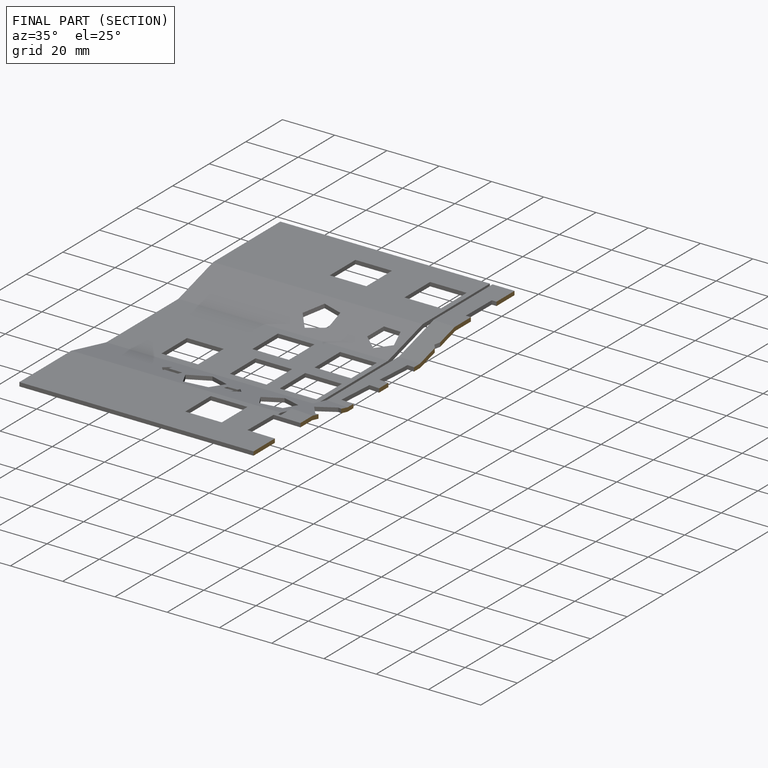
[diagram: finished part — half-section view (interior)]
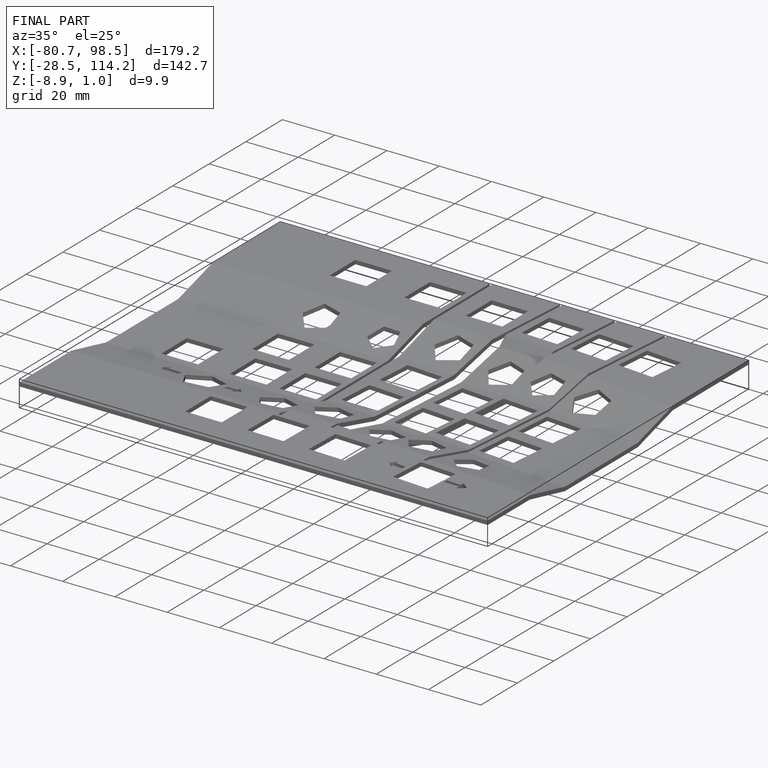
[diagram: finished part — iso view with bounding-box wireframe]
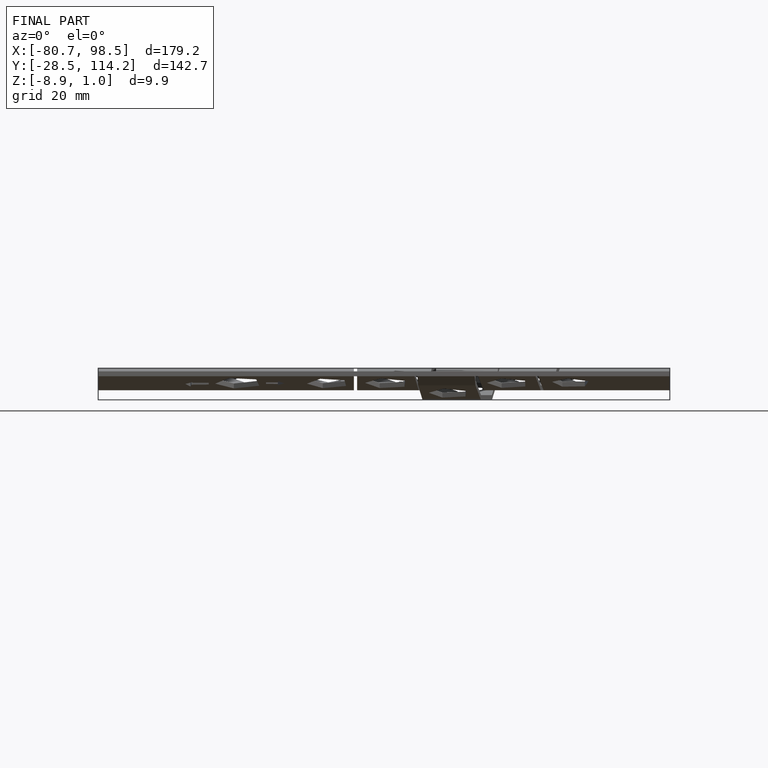
[diagram: finished part — front view with bounding-box wireframe]
